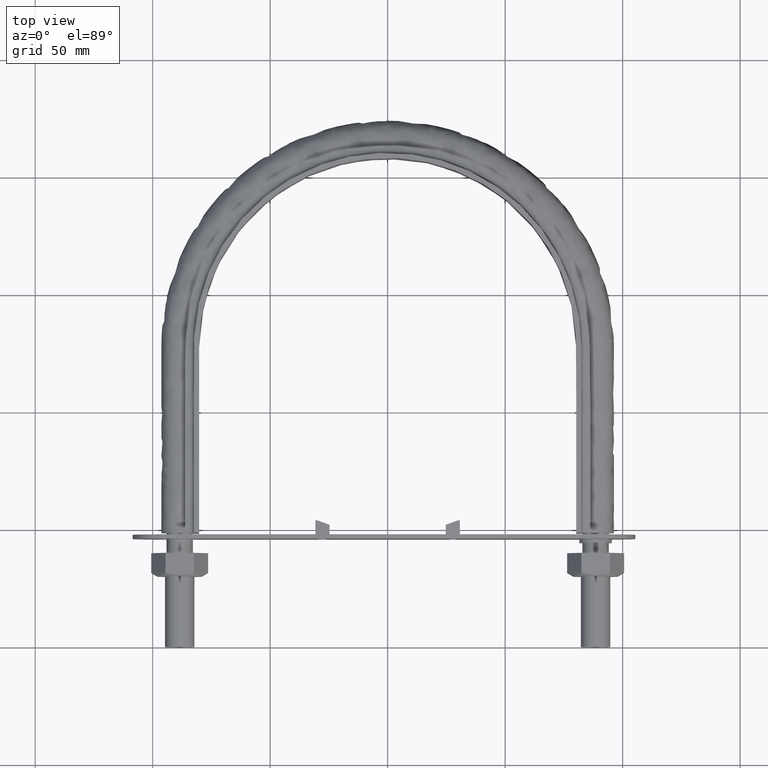
[diagram: clean part render]
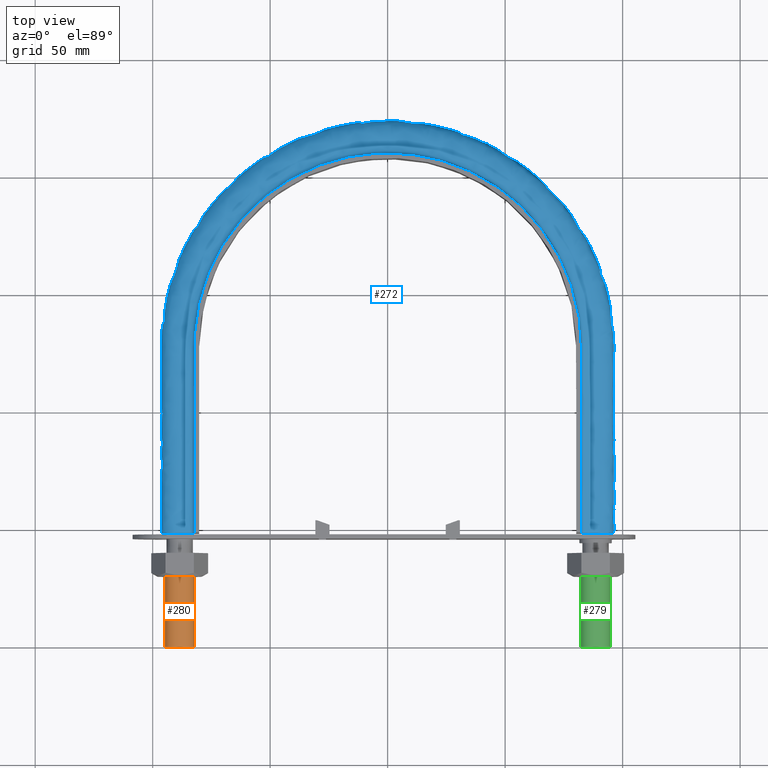
[diagram: same view with three faces highlighted in distinct colors, each labeled with its STEP entity id]
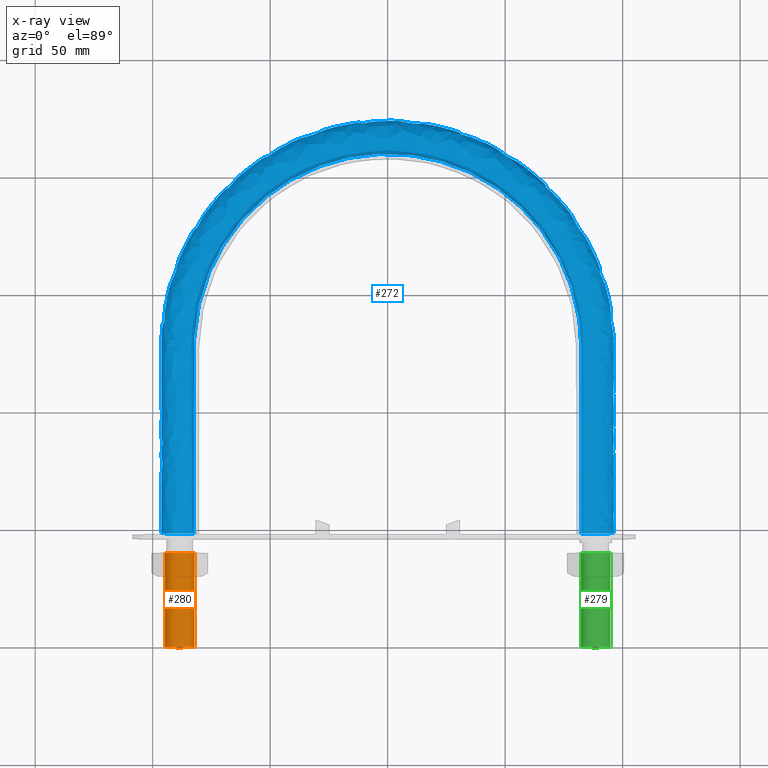
[diagram: x-ray of the same camera — body ghosted, the three highlighted faces saturated]
A machine part, top view with three faces highlighted in distinct colors.
The next image is the same camera in x-ray (body ghosted, the three faces saturated) — at least one of them is partly hidden behind the body in this view.
Their STEP definitions:

[orange] entity #280 — the highlighted cylindrical surface (bore or boss wall) has radius 6.25 mm, axis along (-0, -1, 0).
#280 = ADVANCED_FACE( '', ( #379, #380 ), #381, .T. );
#379 = FACE_OUTER_BOUND( '', #1476, .T. );
#380 = FACE_OUTER_BOUND( '', #1477, .T. );
#381 = CYLINDRICAL_SURFACE( '', #1478, 6.25000000000000 );
#1476 = EDGE_LOOP( '', ( #1732 ) );
#1477 = EDGE_LOOP( '', ( #1733 ) );
#1478 = AXIS2_PLACEMENT_3D( '', #1734, #1735, #1736 );
#1732 = ORIENTED_EDGE( '', *, *, #2216, .T. );
#1733 = ORIENTED_EDGE( '', *, *, #2215, .F. );
#1734 = CARTESIAN_POINT( '', ( -88.4999999999999, 370.000000000000, 0.000000000000000 ) );
#1735 = DIRECTION( '', ( -1.83690953073357E-016, -1.00000000000000, 0.000000000000000 ) );
#1736 = DIRECTION( '', ( -1.00000000000000, 1.83690953073357E-016, 0.000000000000000 ) );
#2215 = EDGE_CURVE( '', #2385, #2385, #2386, .T. );
#2216 = EDGE_CURVE( '', #2387, #2387, #2388, .T. );
#2385 = VERTEX_POINT( '', #2847 );
#2386 = CIRCLE( '', #2848, 6.25000000000000 );
#2387 = VERTEX_POINT( '', #2849 );
#2388 = CIRCLE( '', #2850, 6.25000000000000 );
#2847 = CARTESIAN_POINT( '', ( -94.7500000000000, 40.0000000000000, 0.000000000000000 ) );
#2848 = AXIS2_PLACEMENT_3D( '', #3317, #3318, #3319 );
#2849 = CARTESIAN_POINT( '', ( -94.7500000000000, 6.74969859192943E-014, 0.000000000000000 ) );
#2850 = AXIS2_PLACEMENT_3D( '', #3320, #3321, #3322 );
#3317 = CARTESIAN_POINT( '', ( -88.5000000000000, 40.0000000000000, 0.000000000000000 ) );
#3318 = DIRECTION( '', ( 1.83690953073357E-016, 1.00000000000000, 0.000000000000000 ) );
#3319 = DIRECTION( '', ( -1.00000000000000, 1.83690953073357E-016, 0.000000000000000 ) );
#3320 = CARTESIAN_POINT( '', ( -88.5000000000000, 6.63489174625859E-014, 0.000000000000000 ) );
#3321 = DIRECTION( '', ( 1.83690953073357E-016, 1.00000000000000, 0.000000000000000 ) );
#3322 = DIRECTION( '', ( -1.00000000000000, 1.83690953073357E-016, 0.000000000000000 ) );

[blue] entity #272 — the highlighted face is a freeform B-spline surface patch.
#272 = ADVANCED_FACE( '', ( #357 ), #358, .F. );
#357 = FACE_OUTER_BOUND( '', #545, .T. );
#358 = B_SPLINE_SURFACE_WITH_KNOTS( '', 3, 3, ( ( #546, #547, #548, #549, #550, #551, #552, #553, #554, #555, #556, #557, #558, #559, #560, #561, #562, #563 ), ( #564, #565, #566, #567, #568, #569, #570, #571, #572, #573, #574, #575, #576, #577, #578, #579, #580, #581 ), ( #582, #583, #584, #585, #586, #587, #588, #589, #590, #591, #592, #593, #594, #595, #596, #597, #598, #599 ), ( #600, #601, #602, #603, #604, #605, #606, #607, #608, #609, #610, #611, #612, #613, #614, #615, #616, #617 ), ( #618, #619, #620, #621, #622, #623, #624, #625, #626, #627, #628, #629, #630, #631, #632, #633, #634, #635 ), ( #636, #637, #638, #639, #640, #641, #642, #643, #644, #645, #646, #647, #648, #649, #650, #651, #652, #653 ), ( #654, #655, #656, #657, #658, #659, #660, #661, #662, #663, #664, #665, #666, #667, #668, #669, #670, #671 ), ( #672, #673, #674, #675, #676, #677, #678, #679, #680, #681, #682, #683, #684, #685, #686, #687, #688, #689 ), ( #690, #691, #692, #693, #694, #695, #696, #697, #698, #699, #700, #701, #702, #703, #704, #705, #706, #707 ), ( #708, #709, #710, #711, #712, #713, #714, #715, #716, #717, #718, #719, #720, #721, #722, #723, #724, #725 ), ( #726, #727, #728, #729, #730, #731, #732, #733, #734, #735, #736, #737, #738, #739, #740, #741, #742, #743 ), ( #744, #745, #746, #747, #748, #749, #750, #751, #752, #753, #754, #755, #756, #757, #758, #759, #760, #761 ), ( #762, #763, #764, #765, #766, #767, #768, #769, #770, #771, #772, #773, #774, #775, #776, #777, #778, #779 ), ( #780, #781, #782, #783, #784, #785, #786, #787, #788, #789, #790, #791, #792, #793, #794, #795, #796, #797 ), ( #798, #799, #800, #801, #802, #803, #804, #805, #806, #807, #808, #809, #810, #811, #812, #813, #814, #815 ), ( #816, #817, #818, #819, #820, #821, #822, #823, #824, #825, #826, #827, #828, #829, #830, #831, #832, #833 ), ( #834, #835, #836, #837, #838, #839, #840, #841, #842, #843, #844, #845, #846, #847, #848, #849, #850, #851 ), ( #852, #853, #854, #855, #856, #857, #858, #859, #860, #861, #862, #863, #864, #865, #866, #867, #868, #869 ), ( #870, #871, #872, #873, #874, #875, #876, #877, #878, #879, #880, #881, #882, #883, #884, #885, #886, #887 ), ( #888, #889, #890, #891, #892, #893, #894, #895, #896, #897, #898, #899, #900, #901, #902, #903, #904, #905 ), ( #906, #907, #908, #909, #910, #911, #912, #913, #914, #915, #916, #917, #918, #919, #920, #921, #922, #923 ), ( #924, #925, #926, #927, #928, #929, #930, #931, #932, #933, #934, #935, #936, #937, #938, #939, #940, #941 ), ( #942, #943, #944, #945, #946, #947, #948, #949, #950, #951, #952, #953, #954, #955, #956, #957, #958, #959 ), ( #960, #961, #962, #963, #964, #965, #966, #967, #968, #969, #970, #971, #972, #973, #974, #975, #976, #977 ), ( #978, #979, #980, #981, #982, #983, #984, #985, #986, #987, #988, #989, #990, #991, #992, #993, #994, #995 ), ( #996, #997, #998, #999, #1000, #1001, #1002, #1003, #1004, #1005, #1006, #1007, #1008, #1009, #1010, #1011, #1012, #1013 ), ( #1014, #1015, #1016, #1017, #1018, #1019, #1020, #1021, #1022, #1023, #1024, #1025, #1026, #1027, #1028, #1029, #1030, #1031 ), ( #1032, #1033, #1034, #1035, #1036, #1037, #1038, #1039, #1040, #1041, #1042, #1043, #1044, #1045, #1046, #1047, #1048, #1049 ), ( #1050, #1051, #1052, #1053, #1054, #1055, #1056, #1057, #1058, #1059, #1060, #1061, #1062, #1063, #1064, #1065, #1066, #1067 ), ( #1068, #1069, #1070, #1071, #1072, #1073, #1074, #1075, #1076, #1077, #1078, #1079, #1080, #1081, #1082, #1083, #1084, #1085 ), ( #1086, #1087, #1088, #1089, #1090, #1091, #1092, #1093, #1094, #1095, #1096, #1097, #1098, #1099, #1100, #1101, #1102, #1103 ) ), .UNSPECIFIED., .F., .F., .F., ( 4, 3, 1, 1, 1, 3, 3, 1, 1, 1, 3, 3, 1, 1, 1, 3, 4 ), ( 4, 3, 1, 1, 1, 1, 1, 1, 1, 1, 3, 4 ), ( 0.105263157894737, 0.157894736842105, 0.210526315789474, 0.263157894736842, 0.315789473684211, 0.368421052631579, 0.421052631578947, 0.473684210526316, 0.526315789473684, 0.578947368421053, 0.631578947368421, 0.684210526315789, 0.736842105263158, 0.789473684210526, 0.842105263157895, 0.894736842105263, 0.947368421052632 ), ( 0.000000000000000, 1.00000000000000, 1.50000000000000, 2.00000000000000, 3.00000000000000, 4.00000000000000, 5.00000000000000, 6.00000000000000, 7.00000000000000, 7.50000000000000, 8.00000000000000, 9.00000000000000 ), .UNSPECIFIED. );
#545 = EDGE_LOOP( '', ( #1682, #1683, #1684, #1685 ) );
#546 = CARTESIAN_POINT( '', ( 82.4500000000000, 48.5000000000000, -15.0000000000000 ) );
#547 = CARTESIAN_POINT( '', ( 82.4500000000000, 74.9200000000000, -15.0000000000000 ) );
#548 = CARTESIAN_POINT( '', ( 82.4500000000000, 101.340000000000, -15.0000000000000 ) );
#549 = CARTESIAN_POINT( '', ( 82.4500000000000, 127.760000000000, -15.0000000000000 ) );
#550 = CARTESIAN_POINT( '', ( 82.4500000000000, 133.917965282921, -15.0000000000000 ) );
#551 = CARTESIAN_POINT( '', ( 81.0415063471974, 146.260747551918, -15.0000000000000 ) );
#552 = CARTESIAN_POINT( '', ( 72.8782592641098, 169.697642595926, -15.0000000000000 ) );
#553 = CARTESIAN_POINT( '', ( 53.1613822653425, 194.423193230709, -15.0000000000000 ) );
#554 = CARTESIAN_POINT( '', ( 18.9732412542822, 210.886728985128, -15.0000000000000 ) );
#555 = CARTESIAN_POINT( '', ( -18.9732412542821, 210.886728985128, -15.0000000000000 ) );
#556 = CARTESIAN_POINT( '', ( -53.1613822653425, 194.423193230709, -15.0000000000000 ) );
#557 = CARTESIAN_POINT( '', ( -72.8782592641097, 169.697642595927, -15.0000000000000 ) );
#558 = CARTESIAN_POINT( '', ( -81.0415063471973, 146.260747551918, -15.0000000000000 ) );
#559 = CARTESIAN_POINT( '', ( -82.4500000000000, 133.917965282921, -15.0000000000000 ) );
#560 = CARTESIAN_POINT( '', ( -82.4500000000000, 127.760000000000, -15.0000000000000 ) );
#561 = CARTESIAN_POINT( '', ( -82.4500000000000, 101.340000000000, -15.0000000000000 ) );
#562 = CARTESIAN_POINT( '', ( -82.4500000000000, 74.9200000000000, -15.0000000000000 ) );
#563 = CARTESIAN_POINT( '', ( -82.4500000000000, 48.5000000000001, -15.0000000000000 ) );
#564 = CARTESIAN_POINT( '', ( 82.4500000000000, 48.5000000000000, -13.2666666666667 ) );
#565 = CARTESIAN_POINT( '', ( 82.4500000000000, 74.9200000000000, -13.2666666666667 ) );
#566 = CARTESIAN_POINT( '', ( 82.4500000000000, 101.340000000000, -13.2666666666667 ) );
#567 = CARTESIAN_POINT( '', ( 82.4500000000000, 127.760000000000, -13.2666666666667 ) );
#568 = CARTESIAN_POINT( '', ( 82.4500000000000, 133.917965282921, -13.2666666666667 ) );
#569 = CARTESIAN_POINT( '', ( 81.0415063471974, 146.260747551918, -13.2666666666667 ) );
#570 = CARTESIAN_POINT( '', ( 72.8782592641098, 169.697642595926, -13.2666666666667 ) );
#571 = CARTESIAN_POINT( '', ( 53.1613822653425, 194.423193230709, -13.2666666666667 ) );
#572 = CARTESIAN_POINT( '', ( 18.9732412542822, 210.886728985128, -13.2666666666667 ) );
#573 = CARTESIAN_POINT( '', ( -18.9732412542821, 210.886728985128, -13.2666666666667 ) );
#574 = CARTESIAN_POINT( '', ( -53.1613822653425, 194.423193230709, -13.2666666666667 ) );
#575 = CARTESIAN_POINT( '', ( -72.8782592641097, 169.697642595927, -13.2666666666667 ) );
#576 = CARTESIAN_POINT( '', ( -81.0415063471973, 146.260747551918, -13.2666666666667 ) );
#577 = CARTESIAN_POINT( '', ( -82.4500000000000, 133.917965282921, -13.2666666666667 ) );
#578 = CARTESIAN_POINT( '', ( -82.4500000000000, 127.760000000000, -13.2666666666667 ) );
#579 = CARTESIAN_POINT( '', ( -82.4500000000000, 101.340000000000, -13.2666666666667 ) );
#580 = CARTESIAN_POINT( '', ( -82.4500000000000, 74.9200000000000, -13.2666666666667 ) );
#581 = CARTESIAN_POINT( '', ( -82.4500000000000, 48.5000000000001, -13.2666666666667 ) );
#582 = CARTESIAN_POINT( '', ( 82.4500000000000, 48.5000000000000, -11.5333333333333 ) );
#583 = CARTESIAN_POINT( '', ( 82.4500000000000, 74.9200000000000, -11.5333333333333 ) );
#584 = CARTESIAN_POINT( '', ( 82.4500000000000, 101.340000000000, -11.5333333333333 ) );
#585 = CARTESIAN_POINT( '', ( 82.4500000000000, 127.760000000000, -11.5333333333333 ) );
#586 = CARTESIAN_POINT( '', ( 82.4500000000000, 133.917965282921, -11.5333333333333 ) );
#587 = CARTESIAN_POINT( '', ( 81.0415063471974, 146.260747551918, -11.5333333333333 ) );
#588 = CARTESIAN_POINT( '', ( 72.8782592641098, 169.697642595927, -11.5333333333334 ) );
#589 = CARTESIAN_POINT( '', ( 53.1613822653425, 194.423193230709, -11.5333333333333 ) );
#590 = CARTESIAN_POINT( '', ( 18.9732412542822, 210.886728985128, -11.5333333333333 ) );
#591 = CARTESIAN_POINT( '', ( -18.9732412542821, 210.886728985128, -11.5333333333333 ) );
#592 = CARTESIAN_POINT( '', ( -53.1613822653425, 194.423193230709, -11.5333333333333 ) );
#593 = CARTESIAN_POINT( '', ( -72.8782592641097, 169.697642595927, -11.5333333333333 ) );
#594 = CARTESIAN_POINT( '', ( -81.0415063471973, 146.260747551918, -11.5333333333333 ) );
#595 = CARTESIAN_POINT( '', ( -82.4500000000000, 133.917965282921, -11.5333333333333 ) );
#596 = CARTESIAN_POINT( '', ( -82.4500000000000, 127.760000000000, -11.5333333333333 ) );
#597 = CARTESIAN_POINT( '', ( -82.4500000000000, 101.340000000000, -11.5333333333333 ) );
#598 = CARTESIAN_POINT( '', ( -82.4500000000000, 74.9200000000000, -11.5333333333333 ) );
#599 = CARTESIAN_POINT( '', ( -82.4500000000000, 48.5000000000001, -11.5333333333333 ) );
#600 = CARTESIAN_POINT( '', ( 82.4500000000000, 48.5000000000000, -9.79999999999999 ) );
#601 = CARTESIAN_POINT( '', ( 82.4500000000000, 74.9200000000000, -9.79999999999999 ) );
#602 = CARTESIAN_POINT( '', ( 82.4500000000000, 101.340000000000, -9.79999999999999 ) );
#603 = CARTESIAN_POINT( '', ( 82.4500000000000, 127.760000000000, -9.79999999999999 ) );
#604 = CARTESIAN_POINT( '', ( 82.4500000000000, 133.917965282921, -9.79999999999999 ) );
#605 = CARTESIAN_POINT( '', ( 81.0415063471974, 146.260747551918, -9.79999999999999 ) );
#606 = CARTESIAN_POINT( '', ( 72.8782592641098, 169.697642595927, -9.80000000000001 ) );
#607 = CARTESIAN_POINT( '', ( 53.1613822653425, 194.423193230709, -9.79999999999998 ) );
#608 = CARTESIAN_POINT( '', ( 18.9732412542822, 210.886728985128, -9.79999999999999 ) );
#609 = CARTESIAN_POINT( '', ( -18.9732412542821, 210.886728985128, -9.80000000000000 ) );
#610 = CARTESIAN_POINT( '', ( -53.1613822653425, 194.423193230709, -9.79999999999999 ) );
#611 = CARTESIAN_POINT( '', ( -72.8782592641097, 169.697642595927, -9.79999999999999 ) );
#612 = CARTESIAN_POINT( '', ( -81.0415063471973, 146.260747551918, -9.79999999999999 ) );
#613 = CARTESIAN_POINT( '', ( -82.4500000000000, 133.917965282921, -9.79999999999999 ) );
#614 = CARTESIAN_POINT( '', ( -82.4500000000000, 127.760000000000, -9.79999999999999 ) );
#615 = CARTESIAN_POINT( '', ( -82.4500000000000, 101.340000000000, -9.79999999999999 ) );
#616 = CARTESIAN_POINT( '', ( -82.4500000000000, 74.9200000000000, -9.79999999999999 ) );
#617 = CARTESIAN_POINT( '', ( -82.4500000000000, 48.5000000000001, -9.79999999999999 ) );
#618 = CARTESIAN_POINT( '', ( 82.4500000000000, 48.5000000000000, -9.53823584172332 ) );
#619 = CARTESIAN_POINT( '', ( 82.4500000000000, 74.9200000000000, -9.53823584172332 ) );
#620 = CARTESIAN_POINT( '', ( 82.4500000000000, 101.340000000000, -9.53823584172332 ) );
#621 = CARTESIAN_POINT( '', ( 82.4500000000000, 127.760000000000, -9.53823584172332 ) );
#622 = CARTESIAN_POINT( '', ( 82.4500000000000, 133.917965282921, -9.53823584172332 ) );
#623 = CARTESIAN_POINT( '', ( 81.0415063471974, 146.260747551918, -9.53823584172332 ) );
#624 = CARTESIAN_POINT( '', ( 72.8782592641098, 169.697642595926, -9.53823584172334 ) );
#625 = CARTESIAN_POINT( '', ( 53.1613822653425, 194.423193230709, -9.53823584172331 ) );
#626 = CARTESIAN_POINT( '', ( 18.9732412542822, 210.886728985128, -9.53823584172333 ) );
#627 = CARTESIAN_POINT( '', ( -18.9732412542821, 210.886728985128, -9.53823584172333 ) );
#628 = CARTESIAN_POINT( '', ( -53.1613822653425, 194.423193230709, -9.53823584172332 ) );
#629 = CARTESIAN_POINT( '', ( -72.8782592641097, 169.697642595927, -9.53823584172332 ) );
#630 = CARTESIAN_POINT( '', ( -81.0415063471973, 146.260747551918, -9.53823584172332 ) );
#631 = CARTESIAN_POINT( '', ( -82.4500000000000, 133.917965282921, -9.53823584172332 ) );
#632 = CARTESIAN_POINT( '', ( -82.4500000000000, 127.760000000000, -9.53823584172332 ) );
#633 = CARTESIAN_POINT( '', ( -82.4500000000000, 101.340000000000, -9.53823584172332 ) );
#634 = CARTESIAN_POINT( '', ( -82.4500000000000, 74.9200000000000, -9.53823584172332 ) );
#635 = CARTESIAN_POINT( '', ( -82.4500000000000, 48.5000000000001, -9.53823584172332 ) );
#636 = CARTESIAN_POINT( '', ( 82.5541362568359, 48.5000000000000, -9.01470752517000 ) );
#637 = CARTESIAN_POINT( '', ( 82.5541362568359, 74.9200000000000, -9.01470752517000 ) );
#638 = CARTESIAN_POINT( '', ( 82.5541362568359, 101.340000000000, -9.01470752517000 ) );
#639 = CARTESIAN_POINT( '', ( 82.5541362568359, 127.760000000000, -9.01470752517000 ) );
#640 = CARTESIAN_POINT( '', ( 82.5541362568359, 133.925888089944, -9.01470752517000 ) );
#641 = CARTESIAN_POINT( '', ( 81.1438855386676, 146.284053785244, -9.01470752516999 ) );
#642 = CARTESIAN_POINT( '', ( 72.9702935407622, 169.750645792292, -9.01470752517001 ) );
#643 = CARTESIAN_POINT( '', ( 53.2285306995549, 194.507378724202, -9.01470752516999 ) );
#644 = CARTESIAN_POINT( '', ( 18.9972034371377, 210.991722298581, -9.01470752517000 ) );
#645 = CARTESIAN_POINT( '', ( -18.9972034371376, 210.991722298581, -9.01470752517000 ) );
#646 = CARTESIAN_POINT( '', ( -53.2285306995549, 194.507378724202, -9.01470752516999 ) );
#647 = CARTESIAN_POINT( '', ( -72.9702935407621, 169.750645792292, -9.01470752516999 ) );
#648 = CARTESIAN_POINT( '', ( -81.1438855386676, 146.284053785244, -9.01470752517000 ) );
#649 = CARTESIAN_POINT( '', ( -82.5541362568359, 133.925888089945, -9.01470752517000 ) );
#650 = CARTESIAN_POINT( '', ( -82.5541362568359, 127.760000000000, -9.01470752517000 ) );
#651 = CARTESIAN_POINT( '', ( -82.5541362568359, 101.340000000000, -9.01470752517000 ) );
#652 = CARTESIAN_POINT( '', ( -82.5541362568359, 74.9200000000000, -9.01470752517000 ) );
#653 = CARTESIAN_POINT( '', ( -82.5541362568359, 48.5000000000001, -9.01470752517000 ) );
#654 = CARTESIAN_POINT( '', ( 82.9989687109389, 48.5000000000000, -8.34896871093886 ) );
#655 = CARTESIAN_POINT( '', ( 82.9989687109389, 74.9200000000000, -8.34896871093886 ) );
#656 = CARTESIAN_POINT( '', ( 82.9989687109389, 101.340000000000, -8.34896871093886 ) );
#657 = CARTESIAN_POINT( '', ( 82.9989687109389, 127.760000000000, -8.34896871093886 ) );
#658 = CARTESIAN_POINT( '', ( 82.9989687109389, 133.959731458226, -8.34896871093886 ) );
#659 = CARTESIAN_POINT( '', ( 81.5812124445365, 146.383609591080, -8.34896871093886 ) );
#660 = CARTESIAN_POINT( '', ( 73.3634307092067, 169.977056291677, -8.34896871093888 ) );
#661 = CARTESIAN_POINT( '', ( 53.5153645429006, 194.866988727559, -8.34896871093885 ) );
#662 = CARTESIAN_POINT( '', ( 19.0995612223047, 211.440215788808, -8.34896871093886 ) );
#663 = CARTESIAN_POINT( '', ( -19.0995612223046, 211.440215788808, -8.34896871093886 ) );
#664 = CARTESIAN_POINT( '', ( -53.5153645429006, 194.866988727559, -8.34896871093886 ) );
#665 = CARTESIAN_POINT( '', ( -73.3634307092067, 169.977056291677, -8.34896871093886 ) );
#666 = CARTESIAN_POINT( '', ( -81.5812124445364, 146.383609591080, -8.34896871093886 ) );
#667 = CARTESIAN_POINT( '', ( -82.9989687109388, 133.959731458227, -8.34896871093886 ) );
#668 = CARTESIAN_POINT( '', ( -82.9989687109388, 127.760000000000, -8.34896871093886 ) );
#669 = CARTESIAN_POINT( '', ( -82.9989687109388, 101.340000000000, -8.34896871093886 ) );
#670 = CARTESIAN_POINT( '', ( -82.9989687109388, 74.9200000000000, -8.34896871093886 ) );
#671 = CARTESIAN_POINT( '', ( -82.9989687109388, 48.5000000000001, -8.34896871093886 ) );
#672 = CARTESIAN_POINT( '', ( 83.6647075251700, 48.5000000000000, -7.90413625683589 ) );
#673 = CARTESIAN_POINT( '', ( 83.6647075251700, 74.9200000000000, -7.90413625683589 ) );
#674 = CARTESIAN_POINT( '', ( 83.6647075251700, 101.340000000000, -7.90413625683589 ) );
#675 = CARTESIAN_POINT( '', ( 83.6647075251700, 127.760000000000, -7.90413625683589 ) );
#676 = CARTESIAN_POINT( '', ( 83.6647075251700, 134.010381638225, -7.90413625683589 ) );
#677 = CARTESIAN_POINT( '', ( 82.2357184120284, 146.532605383800, -7.90413625683589 ) );
#678 = CARTESIAN_POINT( '', ( 73.9518020610190, 170.315903549785, -7.90413625683591 ) );
#679 = CARTESIAN_POINT( '', ( 53.9446417257792, 195.405183130896, -7.90413625683589 ) );
#680 = CARTESIAN_POINT( '', ( 19.2527504734392, 212.111433730801, -7.90413625683590 ) );
#681 = CARTESIAN_POINT( '', ( -19.2527504734391, 212.111433730801, -7.90413625683590 ) );
#682 = CARTESIAN_POINT( '', ( -53.9446417257792, 195.405183130896, -7.90413625683589 ) );
#683 = CARTESIAN_POINT( '', ( -73.9518020610189, 170.315903549785, -7.90413625683589 ) );
#684 = CARTESIAN_POINT( '', ( -82.2357184120283, 146.532605383800, -7.90413625683590 ) );
#685 = CARTESIAN_POINT( '', ( -83.6647075251700, 134.010381638225, -7.90413625683589 ) );
#686 = CARTESIAN_POINT( '', ( -83.6647075251700, 127.760000000000, -7.90413625683589 ) );
#687 = CARTESIAN_POINT( '', ( -83.6647075251700, 101.340000000000, -7.90413625683589 ) );
#688 = CARTESIAN_POINT( '', ( -83.6647075251700, 74.9200000000000, -7.90413625683589 ) );
#689 = CARTESIAN_POINT( '', ( -83.6647075251700, 48.5000000000001, -7.90413625683589 ) );
#690 = CARTESIAN_POINT( '', ( 84.1882358417233, 48.5000000000000, -7.79999999999998 ) );
#691 = CARTESIAN_POINT( '', ( 84.1882358417233, 74.9200000000000, -7.79999999999998 ) );
#692 = CARTESIAN_POINT( '', ( 84.1882358417233, 101.340000000000, -7.79999999999998 ) );
#693 = CARTESIAN_POINT( '', ( 84.1882358417233, 127.760000000000, -7.79999999999998 ) );
#694 = CARTESIAN_POINT( '', ( 84.1882358417234, 134.050212278863, -7.79999999999998 ) );
#695 = CARTESIAN_POINT( '', ( 82.7504133644789, 146.649773731010, -7.79999999999998 ) );
#696 = CARTESIAN_POINT( '', ( 74.4144896146629, 170.582368612080, -7.80000000000000 ) );
#697 = CARTESIAN_POINT( '', ( 54.2822197009296, 195.828412186997, -7.79999999999997 ) );
#698 = CARTESIAN_POINT( '', ( 19.3732165016264, 212.639270761931, -7.79999999999999 ) );
#699 = CARTESIAN_POINT( '', ( -19.3732165016263, 212.639270761931, -7.79999999999999 ) );
#700 = CARTESIAN_POINT( '', ( -54.2822197009296, 195.828412186997, -7.79999999999999 ) );
#701 = CARTESIAN_POINT( '', ( -74.4144896146628, 170.582368612080, -7.79999999999998 ) );
#702 = CARTESIAN_POINT( '', ( -82.7504133644789, 146.649773731010, -7.79999999999998 ) );
#703 = CARTESIAN_POINT( '', ( -84.1882358417233, 134.050212278863, -7.79999999999998 ) );
#704 = CARTESIAN_POINT( '', ( -84.1882358417233, 127.760000000000, -7.79999999999998 ) );
#705 = CARTESIAN_POINT( '', ( -84.1882358417233, 101.340000000000, -7.79999999999998 ) );
#706 = CARTESIAN_POINT( '', ( -84.1882358417233, 74.9200000000000, -7.79999999999998 ) );
#707 = CARTESIAN_POINT( '', ( -84.1882358417233, 48.5000000000001, -7.79999999999998 ) );
#708 = CARTESIAN_POINT( '', ( 84.4500000000000, 48.5000000000000, -7.79999999999998 ) );
#709 = CARTESIAN_POINT( '', ( 84.4500000000000, 74.9200000000000, -7.79999999999998 ) );
#710 = CARTESIAN_POINT( '', ( 84.4500000000000, 101.340000000000, -7.79999999999998 ) );
#711 = CARTESIAN_POINT( '', ( 84.4500000000000, 127.760000000000, -7.79999999999998 ) );
#712 = CARTESIAN_POINT( '', ( 84.4500000000000, 134.070127599181, -7.79999999999998 ) );
#713 = CARTESIAN_POINT( '', ( 83.0077608407042, 146.708357904614, -7.79999999999998 ) );
#714 = CARTESIAN_POINT( '', ( 74.6458333914849, 170.715601143227, -7.80000000000000 ) );
#715 = CARTESIAN_POINT( '', ( 54.4510086885048, 196.040026715048, -7.79999999999997 ) );
#716 = CARTESIAN_POINT( '', ( 19.4334495157200, 212.903189277496, -7.79999999999999 ) );
#717 = CARTESIAN_POINT( '', ( -19.4334495157199, 212.903189277496, -7.79999999999999 ) );
#718 = CARTESIAN_POINT( '', ( -54.4510086885048, 196.040026715048, -7.79999999999998 ) );
#719 = CARTESIAN_POINT( '', ( -74.6458333914848, 170.715601143227, -7.79999999999998 ) );
#720 = CARTESIAN_POINT( '', ( -83.0077608407041, 146.708357904614, -7.79999999999998 ) );
#721 = CARTESIAN_POINT( '', ( -84.4500000000000, 134.070127599181, -7.79999999999998 ) );
#722 = CARTESIAN_POINT( '', ( -84.4500000000000, 127.760000000000, -7.79999999999998 ) );
#723 = CARTESIAN_POINT( '', ( -84.4500000000000, 101.340000000000, -7.79999999999998 ) );
#724 = CARTESIAN_POINT( '', ( -84.4500000000000, 74.9200000000000, -7.79999999999998 ) );
#725 = CARTESIAN_POINT( '', ( -84.4500000000000, 48.5000000000001, -7.79999999999998 ) );
#726 = CARTESIAN_POINT( '', ( 85.8000000000000, 48.5000000000000, -7.79999999999999 ) );
#727 = CARTESIAN_POINT( '', ( 85.8000000000000, 74.9200000000000, -7.79999999999999 ) );
#728 = CARTESIAN_POINT( '', ( 85.8000000000000, 101.340000000000, -7.79999999999999 ) );
#729 = CARTESIAN_POINT( '', ( 85.8000000000000, 127.760000000000, -7.79999999999999 ) );
#730 = CARTESIAN_POINT( '', ( 85.8000000000000, 134.172837162657, -7.79999999999999 ) );
#731 = CARTESIAN_POINT( '', ( 84.3349826238212, 147.010494892684, -7.79999999999999 ) );
#732 = CARTESIAN_POINT( '', ( 75.8389459274631, 171.402723162656, -7.80000000000001 ) );
#733 = CARTESIAN_POINT( '', ( 55.3215065241394, 197.131389316976, -7.79999999999998 ) );
#734 = CARTESIAN_POINT( '', ( 19.7440900921905, 214.264299974845, -7.79999999999999 ) );
#735 = CARTESIAN_POINT( '', ( -19.7440900921904, 214.264299974845, -7.80000000000000 ) );
#736 = CARTESIAN_POINT( '', ( -55.3215065241394, 197.131389316976, -7.79999999999999 ) );
#737 = CARTESIAN_POINT( '', ( -75.8389459274630, 171.402723162656, -7.79999999999999 ) );
#738 = CARTESIAN_POINT( '', ( -84.3349826238212, 147.010494892684, -7.79999999999999 ) );
#739 = CARTESIAN_POINT( '', ( -85.8000000000000, 134.172837162657, -7.79999999999999 ) );
#740 = CARTESIAN_POINT( '', ( -85.8000000000000, 127.760000000000, -7.79999999999999 ) );
#741 = CARTESIAN_POINT( '', ( -85.8000000000000, 101.340000000000, -7.79999999999999 ) );
#742 = CARTESIAN_POINT( '', ( -85.8000000000000, 74.9200000000000, -7.79999999999999 ) );
#743 = CARTESIAN_POINT( '', ( -85.8000000000000, 48.5000000000001, -7.79999999999999 ) );
#744 = CARTESIAN_POINT( '', ( 87.1500000000000, 48.5000000000000, -7.79999999999999 ) );
#745 = CARTESIAN_POINT( '', ( 87.1500000000000, 74.9200000000000, -7.79999999999999 ) );
#746 = CARTESIAN_POINT( '', ( 87.1500000000000, 101.340000000000, -7.79999999999999 ) );
#747 = CARTESIAN_POINT( '', ( 87.1500000000000, 127.760000000000, -7.79999999999999 ) );
#748 = CARTESIAN_POINT( '', ( 87.1500000000000, 134.275546726132, -7.79999999999999 ) );
#749 = CARTESIAN_POINT( '', ( 85.6622044069384, 147.312631880754, -7.79999999999999 ) );
#750 = CARTESIAN_POINT( '', ( 77.0320584634413, 172.089845182084, -7.80000000000001 ) );
#751 = CARTESIAN_POINT( '', ( 56.1920043597740, 198.222751918905, -7.79999999999998 ) );
#752 = CARTESIAN_POINT( '', ( 20.0547306686611, 215.625410672194, -7.79999999999999 ) );
#753 = CARTESIAN_POINT( '', ( -20.0547306686610, 215.625410672194, -7.80000000000000 ) );
#754 = CARTESIAN_POINT( '', ( -56.1920043597740, 198.222751918905, -7.79999999999999 ) );
#755 = CARTESIAN_POINT( '', ( -77.0320584634412, 172.089845182084, -7.79999999999999 ) );
#756 = CARTESIAN_POINT( '', ( -85.6622044069383, 147.312631880754, -7.79999999999999 ) );
#757 = CARTESIAN_POINT( '', ( -87.1500000000000, 134.275546726132, -7.79999999999999 ) );
#758 = CARTESIAN_POINT( '', ( -87.1500000000000, 127.760000000000, -7.79999999999999 ) );
#759 = CARTESIAN_POINT( '', ( -87.1499999999999, 101.340000000000, -7.79999999999999 ) );
#760 = CARTESIAN_POINT( '', ( -87.1499999999999, 74.9200000000000, -7.79999999999999 ) );
#761 = CARTESIAN_POINT( '', ( -87.1500000000000, 48.5000000000001, -7.79999999999999 ) );
#762 = CARTESIAN_POINT( '', ( 88.5000000000000, 48.5000000000000, -7.79999999999999 ) );
#763 = CARTESIAN_POINT( '', ( 88.5000000000000, 74.9200000000000, -7.79999999999999 ) );
#764 = CARTESIAN_POINT( '', ( 88.5000000000000, 101.340000000000, -7.79999999999999 ) );
#765 = CARTESIAN_POINT( '', ( 88.5000000000000, 127.760000000000, -7.79999999999999 ) );
#766 = CARTESIAN_POINT( '', ( 88.5000000000000, 134.378256289608, -7.79999999999999 ) );
#767 = CARTESIAN_POINT( '', ( 86.9894261900554, 147.614768868824, -7.79999999999999 ) );
#768 = CARTESIAN_POINT( '', ( 78.2251709994195, 172.776967201512, -7.80000000000001 ) );
#769 = CARTESIAN_POINT( '', ( 57.0625021954086, 199.314114520833, -7.79999999999998 ) );
#770 = CARTESIAN_POINT( '', ( 20.3653712451316, 216.986521369543, -7.79999999999999 ) );
#771 = CARTESIAN_POINT( '', ( -20.3653712451315, 216.986521369543, -7.80000000000000 ) );
#772 = CARTESIAN_POINT( '', ( -57.0625021954085, 199.314114520833, -7.79999999999999 ) );
#773 = CARTESIAN_POINT( '', ( -78.2251709994195, 172.776967201512, -7.79999999999999 ) );
#774 = CARTESIAN_POINT( '', ( -86.9894261900554, 147.614768868824, -7.79999999999999 ) );
#775 = CARTESIAN_POINT( '', ( -88.5000000000000, 134.378256289608, -7.79999999999999 ) );
#776 = CARTESIAN_POINT( '', ( -88.5000000000000, 127.760000000000, -7.79999999999999 ) );
#777 = CARTESIAN_POINT( '', ( -88.5000000000000, 101.340000000000, -7.79999999999999 ) );
#778 = CARTESIAN_POINT( '', ( -88.5000000000000, 74.9200000000000, -7.79999999999999 ) );
#779 = CARTESIAN_POINT( '', ( -88.5000000000000, 48.5000000000001, -7.79999999999999 ) );
#780 = CARTESIAN_POINT( '', ( 90.5373902247172, 48.5000000000000, -7.79999999999998 ) );
#781 = CARTESIAN_POINT( '', ( 90.5373902247172, 74.9200000000000, -7.79999999999998 ) );
#782 = CARTESIAN_POINT( '', ( 90.5373902247172, 101.340000000000, -7.79999999999998 ) );
#783 = CARTESIAN_POINT( '', ( 90.5373902247172, 127.760000000000, -7.79999999999998 ) );
#784 = CARTESIAN_POINT( '', ( 90.5373902247172, 134.533263297467, -7.79999999999998 ) );
#785 = CARTESIAN_POINT( '', ( 88.9924400322439, 148.070747347356, -7.79999999999998 ) );
#786 = CARTESIAN_POINT( '', ( 80.0257901237081, 173.813956598231, -7.80000000000000 ) );
#787 = CARTESIAN_POINT( '', ( 58.3762383294525, 200.961174888827, -7.79999999999997 ) );
#788 = CARTESIAN_POINT( '', ( 20.8341831517253, 219.040679613644, -7.79999999999999 ) );
#789 = CARTESIAN_POINT( '', ( -20.8341831517252, 219.040679613644, -7.79999999999999 ) );
#790 = CARTESIAN_POINT( '', ( -58.3762383294525, 200.961174888827, -7.79999999999999 ) );
#791 = CARTESIAN_POINT( '', ( -80.0257901237080, 173.813956598231, -7.79999999999998 ) );
#792 = CARTESIAN_POINT( '', ( -88.9924400322439, 148.070747347356, -7.79999999999998 ) );
#793 = CARTESIAN_POINT( '', ( -90.5373902247171, 134.533263297467, -7.79999999999998 ) );
#794 = CARTESIAN_POINT( '', ( -90.5373902247171, 127.760000000000, -7.79999999999998 ) );
#795 = CARTESIAN_POINT( '', ( -90.5373902247171, 101.340000000000, -7.79999999999998 ) );
#796 = CARTESIAN_POINT( '', ( -90.5373902247171, 74.9200000000000, -7.79999999999998 ) );
#797 = CARTESIAN_POINT( '', ( -90.5373902247171, 48.5000000000001, -7.79999999999998 ) );
#798 = CARTESIAN_POINT( '', ( 94.6121706741515, 48.5000000000000, -6.11217067415154 ) );
#799 = CARTESIAN_POINT( '', ( 94.6121706741515, 74.9200000000000, -6.11217067415154 ) );
#800 = CARTESIAN_POINT( '', ( 94.6121706741515, 101.340000000000, -6.11217067415154 ) );
#801 = CARTESIAN_POINT( '', ( 94.6121706741515, 127.760000000000, -6.11217067415154 ) );
#802 = CARTESIAN_POINT( '', ( 94.6121706741516, 134.843277313186, -6.11217067415154 ) );
#803 = CARTESIAN_POINT( '', ( 92.9984677166210, 148.982704304421, -6.11217067415154 ) );
#804 = CARTESIAN_POINT( '', ( 83.6270283722852, 175.887935391669, -6.11217067415155 ) );
#805 = CARTESIAN_POINT( '', ( 61.0037105975404, 204.255295624814, -6.11217067415153 ) );
#806 = CARTESIAN_POINT( '', ( 21.7718069649128, 223.148996101846, -6.11217067415154 ) );
#807 = CARTESIAN_POINT( '', ( -21.7718069649127, 223.148996101846, -6.11217067415154 ) );
#808 = CARTESIAN_POINT( '', ( -61.0037105975404, 204.255295624814, -6.11217067415154 ) );
#809 = CARTESIAN_POINT( '', ( -83.6270283722852, 175.887935391669, -6.11217067415154 ) );
#810 = CARTESIAN_POINT( '', ( -92.9984677166209, 148.982704304421, -6.11217067415154 ) );
#811 = CARTESIAN_POINT( '', ( -94.6121706741515, 134.843277313186, -6.11217067415154 ) );
#812 = CARTESIAN_POINT( '', ( -94.6121706741515, 127.760000000000, -6.11217067415154 ) );
#813 = CARTESIAN_POINT( '', ( -94.6121706741515, 101.340000000000, -6.11217067415154 ) );
#814 = CARTESIAN_POINT( '', ( -94.6121706741515, 74.9200000000000, -6.11217067415154 ) );
#815 = CARTESIAN_POINT( '', ( -94.6121706741515, 48.5000000000001, -6.11217067415154 ) );
#816 = CARTESIAN_POINT( '', ( 97.1439146629242, 48.5000000000000, -1.05853928181154E-015 ) );
#817 = CARTESIAN_POINT( '', ( 97.1439146629242, 74.9200000000000, -1.05853928181154E-015 ) );
#818 = CARTESIAN_POINT( '', ( 97.1439146629242, 101.340000000000, -1.05853928181154E-015 ) );
#819 = CARTESIAN_POINT( '', ( 97.1439146629242, 127.760000000000, -1.05853928181154E-015 ) );
#820 = CARTESIAN_POINT( '', ( 97.1439146629242, 135.035895327940, -1.05853928181154E-015 ) );
#821 = CARTESIAN_POINT( '', ( 95.4874942137875, 149.549321714297, -1.05853928181154E-015 ) );
#822 = CARTESIAN_POINT( '', ( 85.8645509581312, 177.176540608143, -1.05853928181154E-015 ) );
#823 = CARTESIAN_POINT( '', ( 62.6362125698422, 206.301999852224, -1.05853928181154E-015 ) );
#824 = CARTESIAN_POINT( '', ( 22.3543717146522, 225.701576713748, -1.05853928181154E-015 ) );
#825 = CARTESIAN_POINT( '', ( -22.3543717146521, 225.701576713748, -1.05853928181154E-015 ) );
#826 = CARTESIAN_POINT( '', ( -62.6362125698422, 206.301999852224, -1.05853928181154E-015 ) );
#827 = CARTESIAN_POINT( '', ( -85.8645509581311, 177.176540608143, -1.05853928181154E-015 ) );
#828 = CARTESIAN_POINT( '', ( -95.4874942137875, 149.549321714297, -1.05853928181154E-015 ) );
#829 = CARTESIAN_POINT( '', ( -97.1439146629242, 135.035895327940, -1.05853928181154E-015 ) );
#830 = CARTESIAN_POINT( '', ( -97.1439146629242, 127.760000000000, -1.05853928181154E-015 ) );
#831 = CARTESIAN_POINT( '', ( -97.1439146629242, 101.340000000000, -1.05853928181154E-015 ) );
#832 = CARTESIAN_POINT( '', ( -97.1439146629242, 74.9200000000000, -1.05853928181154E-015 ) );
#833 = CARTESIAN_POINT( '', ( -97.1439146629242, 48.5000000000001, -1.05853928181154E-015 ) );
#834 = CARTESIAN_POINT( '', ( 94.6121706741515, 48.5000000000000, 6.11217067415154 ) );
#835 = CARTESIAN_POINT( '', ( 94.6121706741515, 74.9200000000000, 6.11217067415154 ) );
#836 = CARTESIAN_POINT( '', ( 94.6121706741515, 101.340000000000, 6.11217067415154 ) );
#837 = CARTESIAN_POINT( '', ( 94.6121706741515, 127.760000000000, 6.11217067415154 ) );
#838 = CARTESIAN_POINT( '', ( 94.6121706741516, 134.843277313186, 6.11217067415154 ) );
#839 = CARTESIAN_POINT( '', ( 92.9984677166210, 148.982704304421, 6.11217067415154 ) );
#840 = CARTESIAN_POINT( '', ( 83.6270283722852, 175.887935391669, 6.11217067415155 ) );
#841 = CARTESIAN_POINT( '', ( 61.0037105975404, 204.255295624814, 6.11217067415153 ) );
#842 = CARTESIAN_POINT( '', ( 21.7718069649128, 223.148996101846, 6.11217067415154 ) );
#843 = CARTESIAN_POINT( '', ( -21.7718069649127, 223.148996101846, 6.11217067415154 ) );
#844 = CARTESIAN_POINT( '', ( -61.0037105975404, 204.255295624814, 6.11217067415154 ) );
#845 = CARTESIAN_POINT( '', ( -83.6270283722852, 175.887935391669, 6.11217067415154 ) );
#846 = CARTESIAN_POINT( '', ( -92.9984677166209, 148.982704304421, 6.11217067415154 ) );
#847 = CARTESIAN_POINT( '', ( -94.6121706741515, 134.843277313186, 6.11217067415154 ) );
#848 = CARTESIAN_POINT( '', ( -94.6121706741515, 127.760000000000, 6.11217067415154 ) );
#849 = CARTESIAN_POINT( '', ( -94.6121706741515, 101.340000000000, 6.11217067415154 ) );
#850 = CARTESIAN_POINT( '', ( -94.6121706741515, 74.9200000000000, 6.11217067415154 ) );
#851 = CARTESIAN_POINT( '', ( -94.6121706741515, 48.5000000000001, 6.11217067415154 ) );
#852 = CARTESIAN_POINT( '', ( 90.5373902247172, 48.5000000000000, 7.79999999999998 ) );
#853 = CARTESIAN_POINT( '', ( 90.5373902247172, 74.9200000000000, 7.79999999999998 ) );
#854 = CARTESIAN_POINT( '', ( 90.5373902247172, 101.340000000000, 7.79999999999998 ) );
#855 = CARTESIAN_POINT( '', ( 90.5373902247172, 127.760000000000, 7.79999999999998 ) );
#856 = CARTESIAN_POINT( '', ( 90.5373902247172, 134.533263297467, 7.79999999999998 ) );
#857 = CARTESIAN_POINT( '', ( 88.9924400322439, 148.070747347356, 7.79999999999998 ) );
#858 = CARTESIAN_POINT( '', ( 80.0257901237081, 173.813956598231, 7.80000000000000 ) );
#859 = CARTESIAN_POINT( '', ( 58.3762383294525, 200.961174888827, 7.79999999999997 ) );
#860 = CARTESIAN_POINT( '', ( 20.8341831517253, 219.040679613644, 7.79999999999999 ) );
#861 = CARTESIAN_POINT( '', ( -20.8341831517252, 219.040679613644, 7.79999999999999 ) );
#862 = CARTESIAN_POINT( '', ( -58.3762383294525, 200.961174888827, 7.79999999999998 ) );
#863 = CARTESIAN_POINT( '', ( -80.0257901237080, 173.813956598231, 7.79999999999998 ) );
#864 = CARTESIAN_POINT( '', ( -88.9924400322439, 148.070747347356, 7.79999999999998 ) );
#865 = CARTESIAN_POINT( '', ( -90.5373902247171, 134.533263297467, 7.79999999999998 ) );
#866 = CARTESIAN_POINT( '', ( -90.5373902247171, 127.760000000000, 7.79999999999998 ) );
#867 = CARTESIAN_POINT( '', ( -90.5373902247171, 101.340000000000, 7.79999999999998 ) );
#868 = CARTESIAN_POINT( '', ( -90.5373902247171, 74.9200000000000, 7.79999999999998 ) );
#869 = CARTESIAN_POINT( '', ( -90.5373902247171, 48.5000000000001, 7.79999999999998 ) );
#870 = CARTESIAN_POINT( '', ( 88.5000000000000, 48.5000000000000, 7.79999999999998 ) );
#871 = CARTESIAN_POINT( '', ( 88.5000000000000, 74.9200000000000, 7.79999999999998 ) );
#872 = CARTESIAN_POINT( '', ( 88.5000000000000, 101.340000000000, 7.79999999999998 ) );
#873 = CARTESIAN_POINT( '', ( 88.5000000000000, 127.760000000000, 7.79999999999998 ) );
#874 = CARTESIAN_POINT( '', ( 88.5000000000000, 134.378256289608, 7.79999999999998 ) );
#875 = CARTESIAN_POINT( '', ( 86.9894261900554, 147.614768868824, 7.79999999999998 ) );
#876 = CARTESIAN_POINT( '', ( 78.2251709994195, 172.776967201512, 7.80000000000000 ) );
#877 = CARTESIAN_POINT( '', ( 57.0625021954086, 199.314114520833, 7.79999999999997 ) );
#878 = CARTESIAN_POINT( '', ( 20.3653712451316, 216.986521369543, 7.79999999999999 ) );
#879 = CARTESIAN_POINT( '', ( -20.3653712451315, 216.986521369543, 7.79999999999999 ) );
#880 = CARTESIAN_POINT( '', ( -57.0625021954085, 199.314114520833, 7.79999999999998 ) );
#881 = CARTESIAN_POINT( '', ( -78.2251709994195, 172.776967201512, 7.79999999999998 ) );
#882 = CARTESIAN_POINT( '', ( -86.9894261900554, 147.614768868824, 7.79999999999998 ) );
#883 = CARTESIAN_POINT( '', ( -88.5000000000000, 134.378256289608, 7.79999999999998 ) );
#884 = CARTESIAN_POINT( '', ( -88.5000000000000, 127.760000000000, 7.79999999999998 ) );
#885 = CARTESIAN_POINT( '', ( -88.5000000000000, 101.340000000000, 7.79999999999998 ) );
#886 = CARTESIAN_POINT( '', ( -88.5000000000000, 74.9200000000000, 7.79999999999998 ) );
#887 = CARTESIAN_POINT( '', ( -88.5000000000000, 48.5000000000001, 7.79999999999998 ) );
#888 = CARTESIAN_POINT( '', ( 87.1500000000000, 48.5000000000000, 7.79999999999999 ) );
#889 = CARTESIAN_POINT( '', ( 87.1500000000000, 74.9200000000000, 7.79999999999999 ) );
#890 = CARTESIAN_POINT( '', ( 87.1500000000000, 101.340000000000, 7.79999999999999 ) );
#891 = CARTESIAN_POINT( '', ( 87.1500000000000, 127.760000000000, 7.79999999999999 ) );
#892 = CARTESIAN_POINT( '', ( 87.1500000000000, 134.275546726132, 7.79999999999999 ) );
#893 = CARTESIAN_POINT( '', ( 85.6622044069384, 147.312631880754, 7.79999999999999 ) );
#894 = CARTESIAN_POINT( '', ( 77.0320584634413, 172.089845182084, 7.80000000000001 ) );
#895 = CARTESIAN_POINT( '', ( 56.1920043597740, 198.222751918905, 7.79999999999998 ) );
#896 = CARTESIAN_POINT( '', ( 20.0547306686611, 215.625410672194, 7.79999999999999 ) );
#897 = CARTESIAN_POINT( '', ( -20.0547306686610, 215.625410672194, 7.80000000000000 ) );
#898 = CARTESIAN_POINT( '', ( -56.1920043597740, 198.222751918905, 7.79999999999999 ) );
#899 = CARTESIAN_POINT( '', ( -77.0320584634412, 172.089845182084, 7.79999999999999 ) );
#900 = CARTESIAN_POINT( '', ( -85.6622044069383, 147.312631880754, 7.79999999999999 ) );
#901 = CARTESIAN_POINT( '', ( -87.1500000000000, 134.275546726132, 7.79999999999999 ) );
#902 = CARTESIAN_POINT( '', ( -87.1500000000000, 127.760000000000, 7.79999999999999 ) );
#903 = CARTESIAN_POINT( '', ( -87.1499999999999, 101.340000000000, 7.79999999999999 ) );
#904 = CARTESIAN_POINT( '', ( -87.1499999999999, 74.9200000000000, 7.79999999999999 ) );
#905 = CARTESIAN_POINT( '', ( -87.1500000000000, 48.5000000000001, 7.79999999999999 ) );
#906 = CARTESIAN_POINT( '', ( 85.8000000000000, 48.5000000000000, 7.79999999999999 ) );
#907 = CARTESIAN_POINT( '', ( 85.8000000000000, 74.9200000000000, 7.79999999999999 ) );
#908 = CARTESIAN_POINT( '', ( 85.8000000000000, 101.340000000000, 7.79999999999999 ) );
#909 = CARTESIAN_POINT( '', ( 85.8000000000000, 127.760000000000, 7.79999999999999 ) );
#910 = CARTESIAN_POINT( '', ( 85.8000000000000, 134.172837162657, 7.79999999999999 ) );
#911 = CARTESIAN_POINT( '', ( 84.3349826238212, 147.010494892684, 7.79999999999999 ) );
#912 = CARTESIAN_POINT( '', ( 75.8389459274631, 171.402723162656, 7.80000000000001 ) );
#913 = CARTESIAN_POINT( '', ( 55.3215065241394, 197.131389316976, 7.79999999999998 ) );
#914 = CARTESIAN_POINT( '', ( 19.7440900921905, 214.264299974845, 7.79999999999999 ) );
#915 = CARTESIAN_POINT( '', ( -19.7440900921904, 214.264299974845, 7.80000000000000 ) );
#916 = CARTESIAN_POINT( '', ( -55.3215065241394, 197.131389316976, 7.79999999999999 ) );
#917 = CARTESIAN_POINT( '', ( -75.8389459274630, 171.402723162656, 7.79999999999999 ) );
#918 = CARTESIAN_POINT( '', ( -84.3349826238212, 147.010494892684, 7.79999999999999 ) );
#919 = CARTESIAN_POINT( '', ( -85.8000000000000, 134.172837162657, 7.79999999999999 ) );
#920 = CARTESIAN_POINT( '', ( -85.8000000000000, 127.760000000000, 7.79999999999999 ) );
#921 = CARTESIAN_POINT( '', ( -85.8000000000000, 101.340000000000, 7.79999999999999 ) );
#922 = CARTESIAN_POINT( '', ( -85.8000000000000, 74.9200000000000, 7.79999999999999 ) );
#923 = CARTESIAN_POINT( '', ( -85.8000000000000, 48.5000000000001, 7.79999999999999 ) );
#924 = CARTESIAN_POINT( '', ( 84.4500000000000, 48.5000000000000, 7.79999999999999 ) );
#925 = CARTESIAN_POINT( '', ( 84.4500000000000, 74.9200000000000, 7.79999999999999 ) );
#926 = CARTESIAN_POINT( '', ( 84.4500000000000, 101.340000000000, 7.79999999999999 ) );
#927 = CARTESIAN_POINT( '', ( 84.4500000000000, 127.760000000000, 7.79999999999999 ) );
#928 = CARTESIAN_POINT( '', ( 84.4500000000000, 134.070127599181, 7.79999999999999 ) );
#929 = CARTESIAN_POINT( '', ( 83.0077608407042, 146.708357904614, 7.79999999999999 ) );
#930 = CARTESIAN_POINT( '', ( 74.6458333914849, 170.715601143227, 7.80000000000001 ) );
#931 = CARTESIAN_POINT( '', ( 54.4510086885048, 196.040026715048, 7.79999999999998 ) );
#932 = CARTESIAN_POINT( '', ( 19.4334495157200, 212.903189277496, 7.79999999999999 ) );
#933 = CARTESIAN_POINT( '', ( -19.4334495157199, 212.903189277496, 7.80000000000000 ) );
#934 = CARTESIAN_POINT( '', ( -54.4510086885048, 196.040026715048, 7.79999999999999 ) );
#935 = CARTESIAN_POINT( '', ( -74.6458333914848, 170.715601143228, 7.79999999999999 ) );
#936 = CARTESIAN_POINT( '', ( -83.0077608407041, 146.708357904614, 7.79999999999999 ) );
#937 = CARTESIAN_POINT( '', ( -84.4500000000000, 134.070127599181, 7.79999999999999 ) );
#938 = CARTESIAN_POINT( '', ( -84.4500000000000, 127.760000000000, 7.79999999999999 ) );
#939 = CARTESIAN_POINT( '', ( -84.4500000000000, 101.340000000000, 7.79999999999999 ) );
#940 = CARTESIAN_POINT( '', ( -84.4500000000000, 74.9200000000000, 7.79999999999999 ) );
#941 = CARTESIAN_POINT( '', ( -84.4500000000000, 48.5000000000001, 7.79999999999999 ) );
#942 = CARTESIAN_POINT( '', ( 84.1882358417233, 48.5000000000000, 7.79999999999999 ) );
#943 = CARTESIAN_POINT( '', ( 84.1882358417233, 74.9200000000000, 7.79999999999999 ) );
#944 = CARTESIAN_POINT( '', ( 84.1882358417233, 101.340000000000, 7.79999999999999 ) );
#945 = CARTESIAN_POINT( '', ( 84.1882358417233, 127.760000000000, 7.79999999999999 ) );
#946 = CARTESIAN_POINT( '', ( 84.1882358417234, 134.050212278863, 7.79999999999999 ) );
#947 = CARTESIAN_POINT( '', ( 82.7504133644789, 146.649773731010, 7.79999999999999 ) );
#948 = CARTESIAN_POINT( '', ( 74.4144896146629, 170.582368612080, 7.80000000000001 ) );
#949 = CARTESIAN_POINT( '', ( 54.2822197009296, 195.828412186997, 7.79999999999998 ) );
#950 = CARTESIAN_POINT( '', ( 19.3732165016264, 212.639270761931, 7.80000000000000 ) );
#951 = CARTESIAN_POINT( '', ( -19.3732165016263, 212.639270761931, 7.80000000000000 ) );
#952 = CARTESIAN_POINT( '', ( -54.2822197009296, 195.828412186997, 7.79999999999999 ) );
#953 = CARTESIAN_POINT( '', ( -74.4144896146629, 170.582368612080, 7.79999999999999 ) );
#954 = CARTESIAN_POINT( '', ( -82.7504133644789, 146.649773731010, 7.79999999999999 ) );
#955 = CARTESIAN_POINT( '', ( -84.1882358417233, 134.050212278863, 7.79999999999999 ) );
#956 = CARTESIAN_POINT( '', ( -84.1882358417233, 127.760000000000, 7.79999999999999 ) );
#957 = CARTESIAN_POINT( '', ( -84.1882358417233, 101.340000000000, 7.79999999999999 ) );
#958 = CARTESIAN_POINT( '', ( -84.1882358417233, 74.9200000000000, 7.79999999999999 ) );
#959 = CARTESIAN_POINT( '', ( -84.1882358417233, 48.5000000000001, 7.79999999999999 ) );
#960 = CARTESIAN_POINT( '', ( 83.6647075251700, 48.5000000000000, 7.90413625683590 ) );
#961 = CARTESIAN_POINT( '', ( 83.6647075251700, 74.9200000000000, 7.90413625683590 ) );
#962 = CARTESIAN_POINT( '', ( 83.6647075251700, 101.340000000000, 7.90413625683590 ) );
#963 = CARTESIAN_POINT( '', ( 83.6647075251700, 127.760000000000, 7.90413625683590 ) );
#964 = CARTESIAN_POINT( '', ( 83.6647075251700, 134.010381638225, 7.90413625683590 ) );
#965 = CARTESIAN_POINT( '', ( 82.2357184120284, 146.532605383800, 7.90413625683590 ) );
#966 = CARTESIAN_POINT( '', ( 73.9518020610190, 170.315903549785, 7.90413625683592 ) );
#967 = CARTESIAN_POINT( '', ( 53.9446417257792, 195.405183130896, 7.90413625683589 ) );
#968 = CARTESIAN_POINT( '', ( 19.2527504734392, 212.111433730801, 7.90413625683590 ) );
#969 = CARTESIAN_POINT( '', ( -19.2527504734391, 212.111433730801, 7.90413625683591 ) );
#970 = CARTESIAN_POINT( '', ( -53.9446417257792, 195.405183130896, 7.90413625683590 ) );
#971 = CARTESIAN_POINT( '', ( -73.9518020610189, 170.315903549785, 7.90413625683590 ) );
#972 = CARTESIAN_POINT( '', ( -82.2357184120283, 146.532605383800, 7.90413625683590 ) );
#973 = CARTESIAN_POINT( '', ( -83.6647075251700, 134.010381638225, 7.90413625683590 ) );
#974 = CARTESIAN_POINT( '', ( -83.6647075251700, 127.760000000000, 7.90413625683590 ) );
#975 = CARTESIAN_POINT( '', ( -83.6647075251700, 101.340000000000, 7.90413625683590 ) );
#976 = CARTESIAN_POINT( '', ( -83.6647075251700, 74.9200000000000, 7.90413625683590 ) );
#977 = CARTESIAN_POINT( '', ( -83.6647075251700, 48.5000000000001, 7.90413625683590 ) );
#978 = CARTESIAN_POINT( '', ( 82.9989687109389, 48.5000000000000, 8.34896871093887 ) );
#979 = CARTESIAN_POINT( '', ( 82.9989687109389, 74.9200000000000, 8.34896871093887 ) );
#980 = CARTESIAN_POINT( '', ( 82.9989687109389, 101.340000000000, 8.34896871093887 ) );
#981 = CARTESIAN_POINT( '', ( 82.9989687109389, 127.760000000000, 8.34896871093887 ) );
#982 = CARTESIAN_POINT( '', ( 82.9989687109389, 133.959731458227, 8.34896871093887 ) );
#983 = CARTESIAN_POINT( '', ( 81.5812124445365, 146.383609591080, 8.34896871093887 ) );
#984 = CARTESIAN_POINT( '', ( 73.3634307092068, 169.977056291677, 8.34896871093888 ) );
#985 = CARTESIAN_POINT( '', ( 53.5153645429006, 194.866988727559, 8.34896871093886 ) );
#986 = CARTESIAN_POINT( '', ( 19.0995612223047, 211.440215788808, 8.34896871093887 ) );
#987 = CARTESIAN_POINT( '', ( -19.0995612223046, 211.440215788808, 8.34896871093888 ) );
#988 = CARTESIAN_POINT( '', ( -53.5153645429006, 194.866988727559, 8.34896871093887 ) );
#989 = CARTESIAN_POINT( '', ( -73.3634307092067, 169.977056291677, 8.34896871093887 ) );
#990 = CARTESIAN_POINT( '', ( -81.5812124445364, 146.383609591080, 8.34896871093887 ) );
#991 = CARTESIAN_POINT( '', ( -82.9989687109388, 133.959731458227, 8.34896871093887 ) );
#992 = CARTESIAN_POINT( '', ( -82.9989687109388, 127.760000000000, 8.34896871093887 ) );
#993 = CARTESIAN_POINT( '', ( -82.9989687109388, 101.340000000000, 8.34896871093887 ) );
#994 = CARTESIAN_POINT( '', ( -82.9989687109388, 74.9200000000000, 8.34896871093887 ) );
#995 = CARTESIAN_POINT( '', ( -82.9989687109388, 48.5000000000001, 8.34896871093887 ) );
#996 = CARTESIAN_POINT( '', ( 82.5541362568359, 48.5000000000000, 9.01470752517000 ) );
#997 = CARTESIAN_POINT( '', ( 82.5541362568359, 74.9200000000000, 9.01470752517000 ) );
#998 = CARTESIAN_POINT( '', ( 82.5541362568359, 101.340000000000, 9.01470752517000 ) );
#999 = CARTESIAN_POINT( '', ( 82.5541362568359, 127.760000000000, 9.01470752517000 ) );
#1000 = CARTESIAN_POINT( '', ( 82.5541362568359, 133.925888089945, 9.01470752517000 ) );
#1001 = CARTESIAN_POINT( '', ( 81.1438855386676, 146.284053785244, 9.01470752517000 ) );
#1002 = CARTESIAN_POINT( '', ( 72.9702935407622, 169.750645792292, 9.01470752517002 ) );
#1003 = CARTESIAN_POINT( '', ( 53.2285306995549, 194.507378724202, 9.01470752516999 ) );
#1004 = CARTESIAN_POINT( '', ( 18.9972034371377, 210.991722298581, 9.01470752517000 ) );
#1005 = CARTESIAN_POINT( '', ( -18.9972034371376, 210.991722298581, 9.01470752517001 ) );
#1006 = CARTESIAN_POINT( '', ( -53.2285306995549, 194.507378724202, 9.01470752517000 ) );
#1007 = CARTESIAN_POINT( '', ( -72.9702935407621, 169.750645792292, 9.01470752517000 ) );
#1008 = CARTESIAN_POINT( '', ( -81.1438855386676, 146.284053785244, 9.01470752517000 ) );
#1009 = CARTESIAN_POINT( '', ( -82.5541362568359, 133.925888089945, 9.01470752517000 ) );
#1010 = CARTESIAN_POINT( '', ( -82.5541362568359, 127.760000000000, 9.01470752517000 ) );
#1011 = CARTESIAN_POINT( '', ( -82.5541362568359, 101.340000000000, 9.01470752517000 ) );
#1012 = CARTESIAN_POINT( '', ( -82.5541362568359, 74.9200000000000, 9.01470752517000 ) );
#1013 = CARTESIAN_POINT( '', ( -82.5541362568359, 48.5000000000001, 9.01470752517000 ) );
#1014 = CARTESIAN_POINT( '', ( 82.4500000000000, 48.5000000000000, 9.53823584172333 ) );
#1015 = CARTESIAN_POINT( '', ( 82.4500000000000, 74.9200000000000, 9.53823584172333 ) );
#1016 = CARTESIAN_POINT( '', ( 82.4500000000000, 101.340000000000, 9.53823584172333 ) );
#1017 = CARTESIAN_POINT( '', ( 82.4500000000000, 127.760000000000, 9.53823584172333 ) );
#1018 = CARTESIAN_POINT( '', ( 82.4500000000000, 133.917965282921, 9.53823584172333 ) );
#1019 = CARTESIAN_POINT( '', ( 81.0415063471974, 146.260747551918, 9.53823584172333 ) );
#1020 = CARTESIAN_POINT( '', ( 72.8782592641098, 169.697642595927, 9.53823584172335 ) );
#1021 = CARTESIAN_POINT( '', ( 53.1613822653425, 194.423193230709, 9.53823584172332 ) );
#1022 = CARTESIAN_POINT( '', ( 18.9732412542822, 210.886728985128, 9.53823584172333 ) );
#1023 = CARTESIAN_POINT( '', ( -18.9732412542821, 210.886728985128, 9.53823584172333 ) );
#1024 = CARTESIAN_POINT( '', ( -53.1613822653425, 194.423193230709, 9.53823584172333 ) );
#1025 = CARTESIAN_POINT( '', ( -72.8782592641097, 169.697642595926, 9.53823584172333 ) );
#1026 = CARTESIAN_POINT( '', ( -81.0415063471973, 146.260747551918, 9.53823584172333 ) );
#1027 = CARTESIAN_POINT( '', ( -82.4500000000000, 133.917965282921, 9.53823584172333 ) );
#1028 = CARTESIAN_POINT( '', ( -82.4500000000000, 127.760000000000, 9.53823584172333 ) );
#1029 = CARTESIAN_POINT( '', ( -82.4500000000000, 101.340000000000, 9.53823584172333 ) );
#1030 = CARTESIAN_POINT( '', ( -82.4500000000000, 74.9200000000000, 9.53823584172333 ) );
#1031 = CARTESIAN_POINT( '', ( -82.4500000000000, 48.5000000000001, 9.53823584172333 ) );
#1032 = CARTESIAN_POINT( '', ( 82.4500000000000, 48.5000000000000, 9.79999999999999 ) );
#1033 = CARTESIAN_POINT( '', ( 82.4500000000000, 74.9200000000000, 9.79999999999999 ) );
#1034 = CARTESIAN_POINT( '', ( 82.4500000000000, 101.340000000000, 9.79999999999999 ) );
#1035 = CARTESIAN_POINT( '', ( 82.4500000000000, 127.760000000000, 9.79999999999999 ) );
#1036 = CARTESIAN_POINT( '', ( 82.4500000000000, 133.917965282921, 9.79999999999999 ) );
#1037 = CARTESIAN_POINT( '', ( 81.0415063471974, 146.260747551918, 9.79999999999999 ) );
#1038 = CARTESIAN_POINT( '', ( 72.8782592641097, 169.697642595927, 9.80000000000001 ) );
#1039 = CARTESIAN_POINT( '', ( 53.1613822653425, 194.423193230709, 9.79999999999998 ) );
#1040 = CARTESIAN_POINT( '', ( 18.9732412542822, 210.886728985128, 9.80000000000000 ) );
#1041 = CARTESIAN_POINT( '', ( -18.9732412542821, 210.886728985128, 9.80000000000000 ) );
#1042 = CARTESIAN_POINT( '', ( -53.1613822653425, 194.423193230709, 9.79999999999999 ) );
#1043 = CARTESIAN_POINT( '', ( -72.8782592641097, 169.697642595926, 9.79999999999999 ) );
#1044 = CARTESIAN_POINT( '', ( -81.0415063471973, 146.260747551918, 9.79999999999999 ) );
#1045 = CARTESIAN_POINT( '', ( -82.4500000000000, 133.917965282921, 9.79999999999999 ) );
#1046 = CARTESIAN_POINT( '', ( -82.4500000000000, 127.760000000000, 9.79999999999999 ) );
#1047 = CARTESIAN_POINT( '', ( -82.4500000000000, 101.340000000000, 9.79999999999999 ) );
#1048 = CARTESIAN_POINT( '', ( -82.4500000000000, 74.9200000000000, 9.79999999999999 ) );
#1049 = CARTESIAN_POINT( '', ( -82.4500000000000, 48.5000000000001, 9.79999999999999 ) );
#1050 = CARTESIAN_POINT( '', ( 82.4500000000000, 48.5000000000000, 11.5333333333333 ) );
#1051 = CARTESIAN_POINT( '', ( 82.4500000000000, 74.9200000000000, 11.5333333333333 ) );
#1052 = CARTESIAN_POINT( '', ( 82.4500000000000, 101.340000000000, 11.5333333333333 ) );
#1053 = CARTESIAN_POINT( '', ( 82.4500000000000, 127.760000000000, 11.5333333333333 ) );
#1054 = CARTESIAN_POINT( '', ( 82.4500000000000, 133.917965282921, 11.5333333333333 ) );
#1055 = CARTESIAN_POINT( '', ( 81.0415063471974, 146.260747551918, 11.5333333333333 ) );
#1056 = CARTESIAN_POINT( '', ( 72.8782592641098, 169.697642595927, 11.5333333333333 ) );
#1057 = CARTESIAN_POINT( '', ( 53.1613822653425, 194.423193230709, 11.5333333333333 ) );
#1058 = CARTESIAN_POINT( '', ( 18.9732412542822, 210.886728985128, 11.5333333333333 ) );
#1059 = CARTESIAN_POINT( '', ( -18.9732412542821, 210.886728985128, 11.5333333333333 ) );
#1060 = CARTESIAN_POINT( '', ( -53.1613822653425, 194.423193230709, 11.5333333333333 ) );
#1061 = CARTESIAN_POINT( '', ( -72.8782592641097, 169.697642595926, 11.5333333333333 ) );
#1062 = CARTESIAN_POINT( '', ( -81.0415063471973, 146.260747551918, 11.5333333333333 ) );
#1063 = CARTESIAN_POINT( '', ( -82.4500000000000, 133.917965282921, 11.5333333333333 ) );
#1064 = CARTESIAN_POINT( '', ( -82.4500000000000, 127.760000000000, 11.5333333333333 ) );
#1065 = CARTESIAN_POINT( '', ( -82.4500000000000, 101.340000000000, 11.5333333333333 ) );
#1066 = CARTESIAN_POINT( '', ( -82.4500000000000, 74.9200000000000, 11.5333333333333 ) );
#1067 = CARTESIAN_POINT( '', ( -82.4500000000000, 48.5000000000001, 11.5333333333333 ) );
#1068 = CARTESIAN_POINT( '', ( 82.4500000000000, 48.5000000000000, 13.2666666666666 ) );
#1069 = CARTESIAN_POINT( '', ( 82.4500000000000, 74.9200000000000, 13.2666666666666 ) );
#1070 = CARTESIAN_POINT( '', ( 82.4500000000000, 101.340000000000, 13.2666666666666 ) );
#1071 = CARTESIAN_POINT( '', ( 82.4500000000000, 127.760000000000, 13.2666666666666 ) );
#1072 = CARTESIAN_POINT( '', ( 82.4500000000000, 133.917965282921, 13.2666666666666 ) );
#1073 = CARTESIAN_POINT( '', ( 81.0415063471974, 146.260747551918, 13.2666666666666 ) );
#1074 = CARTESIAN_POINT( '', ( 72.8782592641098, 169.697642595927, 13.2666666666667 ) );
#1075 = CARTESIAN_POINT( '', ( 53.1613822653425, 194.423193230709, 13.2666666666666 ) );
#1076 = CARTESIAN_POINT( '', ( 18.9732412542822, 210.886728985128, 13.2666666666666 ) );
#1077 = CARTESIAN_POINT( '', ( -18.9732412542821, 210.886728985128, 13.2666666666667 ) );
#1078 = CARTESIAN_POINT( '', ( -53.1613822653425, 194.423193230709, 13.2666666666666 ) );
#1079 = CARTESIAN_POINT( '', ( -72.8782592641097, 169.697642595926, 13.2666666666666 ) );
#1080 = CARTESIAN_POINT( '', ( -81.0415063471973, 146.260747551918, 13.2666666666666 ) );
#1081 = CARTESIAN_POINT( '', ( -82.4500000000000, 133.917965282921, 13.2666666666666 ) );
#1082 = CARTESIAN_POINT( '', ( -82.4500000000000, 127.760000000000, 13.2666666666666 ) );
#1083 = CARTESIAN_POINT( '', ( -82.4500000000000, 101.340000000000, 13.2666666666666 ) );
#1084 = CARTESIAN_POINT( '', ( -82.4500000000000, 74.9200000000000, 13.2666666666666 ) );
#1085 = CARTESIAN_POINT( '', ( -82.4500000000000, 48.5000000000001, 13.2666666666666 ) );
#1086 = CARTESIAN_POINT( '', ( 82.4500000000000, 48.5000000000000, 15.0000000000000 ) );
#1087 = CARTESIAN_POINT( '', ( 82.4500000000000, 74.9200000000000, 15.0000000000000 ) );
#1088 = CARTESIAN_POINT( '', ( 82.4500000000000, 101.340000000000, 15.0000000000000 ) );
#1089 = CARTESIAN_POINT( '', ( 82.4500000000000, 127.760000000000, 15.0000000000000 ) );
#1090 = CARTESIAN_POINT( '', ( 82.4500000000000, 133.917965282921, 15.0000000000000 ) );
#1091 = CARTESIAN_POINT( '', ( 81.0415063471974, 146.260747551918, 15.0000000000000 ) );
#1092 = CARTESIAN_POINT( '', ( 72.8782592641098, 169.697642595927, 15.0000000000000 ) );
#1093 = CARTESIAN_POINT( '', ( 53.1613822653425, 194.423193230709, 15.0000000000000 ) );
#1094 = CARTESIAN_POINT( '', ( 18.9732412542822, 210.886728985128, 15.0000000000000 ) );
#1095 = CARTESIAN_POINT( '', ( -18.9732412542821, 210.886728985128, 15.0000000000000 ) );
#1096 = CARTESIAN_POINT( '', ( -53.1613822653425, 194.423193230709, 15.0000000000000 ) );
#1097 = CARTESIAN_POINT( '', ( -72.8782592641097, 169.697642595926, 15.0000000000000 ) );
#1098 = CARTESIAN_POINT( '', ( -81.0415063471973, 146.260747551918, 15.0000000000000 ) );
#1099 = CARTESIAN_POINT( '', ( -82.4500000000000, 133.917965282921, 15.0000000000000 ) );
#1100 = CARTESIAN_POINT( '', ( -82.4500000000000, 127.760000000000, 15.0000000000000 ) );
#1101 = CARTESIAN_POINT( '', ( -82.4500000000000, 101.340000000000, 15.0000000000000 ) );
#1102 = CARTESIAN_POINT( '', ( -82.4500000000000, 74.9200000000000, 15.0000000000000 ) );
#1103 = CARTESIAN_POINT( '', ( -82.4500000000000, 48.5000000000001, 15.0000000000000 ) );
#1682 = ORIENTED_EDGE( '', *, *, #2207, .F. );
#1683 = ORIENTED_EDGE( '', *, *, #2203, .T. );
#1684 = ORIENTED_EDGE( '', *, *, #2200, .F. );
#1685 = ORIENTED_EDGE( '', *, *, #2210, .T. );
#2200 = EDGE_CURVE( '', #2358, #2360, #2361, .F. );
#2203 = EDGE_CURVE( '', #2365, #2360, #2366, .T. );
#2207 = EDGE_CURVE( '', #2365, #2372, #2373, .T. );
#2210 = EDGE_CURVE( '', #2358, #2372, #2376, .F. );
#2358 = VERTEX_POINT( '', #2637 );
#2360 = VERTEX_POINT( '', #2640 );
#2361 = B_SPLINE_CURVE_WITH_KNOTS( '', 3, ( #2641, #2642, #2643, #2644, #2645, #2646, #2647, #2648, #2649, #2650, #2651, #2652, #2653, #2654, #2655, #2656, #2657, #2658, #2659, #2660, #2661, #2662, #2663, #2664, #2665, #2666, #2667, #2668, #2669, #2670, #2671 ), .UNSPECIFIED., .F., .F., ( 4, 3, 1, 1, 1, 3, 3, 1, 1, 1, 3, 3, 1, 1, 1, 3, 4 ), ( 0.105263157894737, 0.157894736842105, 0.210526315789474, 0.263157894736842, 0.315789473684211, 0.368421052631579, 0.421052631578947, 0.473684210526316, 0.526315789473684, 0.578947368421053, 0.631578947368421, 0.684210526315789, 0.736842105263158, 0.789473684210526, 0.842105263157895, 0.894736842105263, 0.947368421052632 ), .UNSPECIFIED. );
#2365 = VERTEX_POINT( '', #2693 );
#2366 = B_SPLINE_CURVE_WITH_KNOTS( '', 3, ( #2694, #2695, #2696, #2697, #2698, #2699, #2700, #2701, #2702, #2703, #2704, #2705, #2706, #2707, #2708, #2709, #2710, #2711 ), .UNSPECIFIED., .F., .F., ( 4, 3, 1, 1, 1, 1, 1, 1, 1, 1, 3, 4 ), ( 0.000000000000000, 1.00000000000000, 1.50000000000000, 2.00000000000000, 3.00000000000000, 4.00000000000000, 5.00000000000000, 6.00000000000000, 7.00000000000000, 7.50000000000000, 8.00000000000000, 9.00000000000000 ), .UNSPECIFIED. );
#2372 = VERTEX_POINT( '', #2729 );
#2373 = B_SPLINE_CURVE_WITH_KNOTS( '', 3, ( #2730, #2731, #2732, #2733, #2734, #2735, #2736, #2737, #2738, #2739, #2740, #2741, #2742, #2743, #2744, #2745, #2746, #2747, #2748, #2749, #2750, #2751, #2752, #2753, #2754, #2755, #2756, #2757, #2758, #2759, #2760 ), .UNSPECIFIED., .F., .F., ( 4, 3, 1, 1, 1, 3, 3, 1, 1, 1, 3, 3, 1, 1, 1, 3, 4 ), ( 0.105263157894737, 0.157894736842105, 0.210526315789474, 0.263157894736842, 0.315789473684211, 0.368421052631579, 0.421052631578947, 0.473684210526316, 0.526315789473684, 0.578947368421053, 0.631578947368421, 0.684210526315789, 0.736842105263158, 0.789473684210526, 0.842105263157895, 0.894736842105263, 0.947368421052632 ), .UNSPECIFIED. );
#2376 = B_SPLINE_CURVE_WITH_KNOTS( '', 3, ( #2781, #2782, #2783, #2784, #2785, #2786, #2787, #2788, #2789, #2790, #2791, #2792, #2793, #2794, #2795, #2796, #2797, #2798 ), .UNSPECIFIED., .F., .F., ( 4, 3, 1, 1, 1, 1, 1, 1, 1, 1, 3, 4 ), ( 0.000000000000000, 1.00000000000000, 1.50000000000000, 2.00000000000000, 3.00000000000000, 4.00000000000000, 5.00000000000000, 6.00000000000000, 7.00000000000000, 7.50000000000000, 8.00000000000000, 9.00000000000000 ), .UNSPECIFIED. );
#2637 = CARTESIAN_POINT( '', ( -82.4499999999999, 48.5000000000003, 15.0000000000000 ) );
#2640 = CARTESIAN_POINT( '', ( -82.4499999999999, 48.5000000000003, -15.0000000000000 ) );
#2641 = CARTESIAN_POINT( '', ( -82.4500000000000, 48.5000000000001, -15.0000000000000 ) );
#2642 = CARTESIAN_POINT( '', ( -82.4500000000000, 48.5000000000001, -13.2666666666667 ) );
#2643 = CARTESIAN_POINT( '', ( -82.4500000000000, 48.5000000000001, -11.5333333333333 ) );
#2644 = CARTESIAN_POINT( '', ( -82.4500000000000, 48.5000000000001, -9.79999999999999 ) );
#2645 = CARTESIAN_POINT( '', ( -82.4500000000000, 48.5000000000001, -9.53823584172332 ) );
#2646 = CARTESIAN_POINT( '', ( -82.5541362568359, 48.5000000000001, -9.01470752517000 ) );
#2647 = CARTESIAN_POINT( '', ( -82.9989687109388, 48.5000000000001, -8.34896871093886 ) );
#2648 = CARTESIAN_POINT( '', ( -83.6647075251700, 48.5000000000001, -7.90413625683589 ) );
#2649 = CARTESIAN_POINT( '', ( -84.1882358417233, 48.5000000000001, -7.79999999999998 ) );
#2650 = CARTESIAN_POINT( '', ( -84.4500000000000, 48.5000000000001, -7.79999999999998 ) );
#2651 = CARTESIAN_POINT( '', ( -85.8000000000000, 48.5000000000001, -7.79999999999999 ) );
#2652 = CARTESIAN_POINT( '', ( -87.1500000000000, 48.5000000000001, -7.79999999999999 ) );
#2653 = CARTESIAN_POINT( '', ( -88.5000000000000, 48.5000000000001, -7.79999999999999 ) );
#2654 = CARTESIAN_POINT( '', ( -90.5373902247171, 48.5000000000001, -7.79999999999998 ) );
#2655 = CARTESIAN_POINT( '', ( -94.6121706741515, 48.5000000000001, -6.11217067415154 ) );
#2656 = CARTESIAN_POINT( '', ( -97.1439146629242, 48.5000000000001, -1.05853928181154E-015 ) );
#2657 = CARTESIAN_POINT( '', ( -94.6121706741515, 48.5000000000001, 6.11217067415154 ) );
#2658 = CARTESIAN_POINT( '', ( -90.5373902247171, 48.5000000000001, 7.79999999999998 ) );
#2659 = CARTESIAN_POINT( '', ( -88.5000000000000, 48.5000000000001, 7.79999999999998 ) );
#2660 = CARTESIAN_POINT( '', ( -87.1500000000000, 48.5000000000001, 7.79999999999999 ) );
#2661 = CARTESIAN_POINT( '', ( -85.8000000000000, 48.5000000000001, 7.79999999999999 ) );
#2662 = CARTESIAN_POINT( '', ( -84.4500000000000, 48.5000000000001, 7.79999999999999 ) );
#2663 = CARTESIAN_POINT( '', ( -84.1882358417233, 48.5000000000001, 7.79999999999999 ) );
#2664 = CARTESIAN_POINT( '', ( -83.6647075251700, 48.5000000000001, 7.90413625683590 ) );
#2665 = CARTESIAN_POINT( '', ( -82.9989687109388, 48.5000000000001, 8.34896871093887 ) );
#2666 = CARTESIAN_POINT( '', ( -82.5541362568359, 48.5000000000001, 9.01470752517000 ) );
#2667 = CARTESIAN_POINT( '', ( -82.4500000000000, 48.5000000000001, 9.53823584172333 ) );
#2668 = CARTESIAN_POINT( '', ( -82.4500000000000, 48.5000000000001, 9.79999999999999 ) );
#2669 = CARTESIAN_POINT( '', ( -82.4500000000000, 48.5000000000001, 11.5333333333333 ) );
#2670 = CARTESIAN_POINT( '', ( -82.4500000000000, 48.5000000000001, 13.2666666666666 ) );
#2671 = CARTESIAN_POINT( '', ( -82.4500000000000, 48.5000000000001, 15.0000000000000 ) );
#2693 = CARTESIAN_POINT( '', ( 82.4500000000002, 48.5000000000003, -15.0000000000000 ) );
#2694 = CARTESIAN_POINT( '', ( 82.4500000000000, 48.5000000000000, -15.0000000000000 ) );
#2695 = CARTESIAN_POINT( '', ( 82.4500000000000, 74.9200000000000, -15.0000000000000 ) );
#2696 = CARTESIAN_POINT( '', ( 82.4500000000000, 101.340000000000, -15.0000000000000 ) );
#2697 = CARTESIAN_POINT( '', ( 82.4500000000000, 127.760000000000, -15.0000000000000 ) );
#2698 = CARTESIAN_POINT( '', ( 82.4500000000000, 133.917965282921, -15.0000000000000 ) );
#2699 = CARTESIAN_POINT( '', ( 81.0415063471974, 146.260747551918, -15.0000000000000 ) );
#2700 = CARTESIAN_POINT( '', ( 72.8782592641098, 169.697642595926, -15.0000000000000 ) );
#2701 = CARTESIAN_POINT( '', ( 53.1613822653425, 194.423193230709, -15.0000000000000 ) );
#2702 = CARTESIAN_POINT( '', ( 18.9732412542822, 210.886728985128, -15.0000000000000 ) );
#2703 = CARTESIAN_POINT( '', ( -18.9732412542821, 210.886728985128, -15.0000000000000 ) );
#2704 = CARTESIAN_POINT( '', ( -53.1613822653425, 194.423193230709, -15.0000000000000 ) );
#2705 = CARTESIAN_POINT( '', ( -72.8782592641097, 169.697642595927, -15.0000000000000 ) );
#2706 = CARTESIAN_POINT( '', ( -81.0415063471973, 146.260747551918, -15.0000000000000 ) );
#2707 = CARTESIAN_POINT( '', ( -82.4500000000000, 133.917965282921, -15.0000000000000 ) );
#2708 = CARTESIAN_POINT( '', ( -82.4500000000000, 127.760000000000, -15.0000000000000 ) );
#2709 = CARTESIAN_POINT( '', ( -82.4500000000000, 101.340000000000, -15.0000000000000 ) );
#2710 = CARTESIAN_POINT( '', ( -82.4500000000000, 74.9200000000000, -15.0000000000000 ) );
#2711 = CARTESIAN_POINT( '', ( -82.4500000000000, 48.5000000000001, -15.0000000000000 ) );
#2729 = CARTESIAN_POINT( '', ( 82.4500000000002, 48.5000000000003, 15.0000000000000 ) );
#2730 = CARTESIAN_POINT( '', ( 82.4500000000000, 48.5000000000000, -15.0000000000000 ) );
#2731 = CARTESIAN_POINT( '', ( 82.4500000000000, 48.5000000000000, -13.2666666666667 ) );
#2732 = CARTESIAN_POINT( '', ( 82.4500000000000, 48.5000000000000, -11.5333333333333 ) );
#2733 = CARTESIAN_POINT( '', ( 82.4500000000000, 48.5000000000000, -9.79999999999999 ) );
#2734 = CARTESIAN_POINT( '', ( 82.4500000000000, 48.5000000000000, -9.53823584172332 ) );
#2735 = CARTESIAN_POINT( '', ( 82.5541362568359, 48.5000000000000, -9.01470752517000 ) );
#2736 = CARTESIAN_POINT( '', ( 82.9989687109389, 48.5000000000000, -8.34896871093886 ) );
#2737 = CARTESIAN_POINT( '', ( 83.6647075251700, 48.5000000000000, -7.90413625683589 ) );
#2738 = CARTESIAN_POINT( '', ( 84.1882358417233, 48.5000000000000, -7.79999999999998 ) );
#2739 = CARTESIAN_POINT( '', ( 84.4500000000000, 48.5000000000000, -7.79999999999998 ) );
#2740 = CARTESIAN_POINT( '', ( 85.8000000000000, 48.5000000000000, -7.79999999999999 ) );
#2741 = CARTESIAN_POINT( '', ( 87.1500000000000, 48.5000000000000, -7.79999999999999 ) );
#2742 = CARTESIAN_POINT( '', ( 88.5000000000000, 48.5000000000000, -7.79999999999999 ) );
#2743 = CARTESIAN_POINT( '', ( 90.5373902247172, 48.5000000000000, -7.79999999999998 ) );
#2744 = CARTESIAN_POINT( '', ( 94.6121706741515, 48.5000000000000, -6.11217067415154 ) );
#2745 = CARTESIAN_POINT( '', ( 97.1439146629242, 48.5000000000000, -1.05853928181154E-015 ) );
#2746 = CARTESIAN_POINT( '', ( 94.6121706741515, 48.5000000000000, 6.11217067415154 ) );
#2747 = CARTESIAN_POINT( '', ( 90.5373902247172, 48.5000000000000, 7.79999999999998 ) );
#2748 = CARTESIAN_POINT( '', ( 88.5000000000000, 48.5000000000000, 7.79999999999998 ) );
#2749 = CARTESIAN_POINT( '', ( 87.1500000000000, 48.5000000000000, 7.79999999999999 ) );
#2750 = CARTESIAN_POINT( '', ( 85.8000000000000, 48.5000000000000, 7.79999999999999 ) );
#2751 = CARTESIAN_POINT( '', ( 84.4500000000000, 48.5000000000000, 7.79999999999999 ) );
#2752 = CARTESIAN_POINT( '', ( 84.1882358417233, 48.5000000000000, 7.79999999999999 ) );
#2753 = CARTESIAN_POINT( '', ( 83.6647075251700, 48.5000000000000, 7.90413625683590 ) );
#2754 = CARTESIAN_POINT( '', ( 82.9989687109389, 48.5000000000000, 8.34896871093887 ) );
#2755 = CARTESIAN_POINT( '', ( 82.5541362568359, 48.5000000000000, 9.01470752517000 ) );
#2756 = CARTESIAN_POINT( '', ( 82.4500000000000, 48.5000000000000, 9.53823584172333 ) );
#2757 = CARTESIAN_POINT( '', ( 82.4500000000000, 48.5000000000000, 9.79999999999999 ) );
#2758 = CARTESIAN_POINT( '', ( 82.4500000000000, 48.5000000000000, 11.5333333333333 ) );
#2759 = CARTESIAN_POINT( '', ( 82.4500000000000, 48.5000000000000, 13.2666666666666 ) );
#2760 = CARTESIAN_POINT( '', ( 82.4500000000000, 48.5000000000000, 15.0000000000000 ) );
#2781 = CARTESIAN_POINT( '', ( 82.4500000000000, 48.5000000000000, 15.0000000000000 ) );
#2782 = CARTESIAN_POINT( '', ( 82.4500000000000, 74.9200000000000, 15.0000000000000 ) );
#2783 = CARTESIAN_POINT( '', ( 82.4500000000000, 101.340000000000, 15.0000000000000 ) );
#2784 = CARTESIAN_POINT( '', ( 82.4500000000000, 127.760000000000, 15.0000000000000 ) );
#2785 = CARTESIAN_POINT( '', ( 82.4500000000000, 133.917965282921, 15.0000000000000 ) );
#2786 = CARTESIAN_POINT( '', ( 81.0415063471974, 146.260747551918, 15.0000000000000 ) );
#2787 = CARTESIAN_POINT( '', ( 72.8782592641098, 169.697642595927, 15.0000000000000 ) );
#2788 = CARTESIAN_POINT( '', ( 53.1613822653425, 194.423193230709, 15.0000000000000 ) );
#2789 = CARTESIAN_POINT( '', ( 18.9732412542822, 210.886728985128, 15.0000000000000 ) );
#2790 = CARTESIAN_POINT( '', ( -18.9732412542821, 210.886728985128, 15.0000000000000 ) );
#2791 = CARTESIAN_POINT( '', ( -53.1613822653425, 194.423193230709, 15.0000000000000 ) );
#2792 = CARTESIAN_POINT( '', ( -72.8782592641097, 169.697642595926, 15.0000000000000 ) );
#2793 = CARTESIAN_POINT( '', ( -81.0415063471973, 146.260747551918, 15.0000000000000 ) );
#2794 = CARTESIAN_POINT( '', ( -82.4500000000000, 133.917965282921, 15.0000000000000 ) );
#2795 = CARTESIAN_POINT( '', ( -82.4500000000000, 127.760000000000, 15.0000000000000 ) );
#2796 = CARTESIAN_POINT( '', ( -82.4500000000000, 101.340000000000, 15.0000000000000 ) );
#2797 = CARTESIAN_POINT( '', ( -82.4500000000000, 74.9200000000000, 15.0000000000000 ) );
#2798 = CARTESIAN_POINT( '', ( -82.4500000000000, 48.5000000000001, 15.0000000000000 ) );

[green] entity #279 — the highlighted cylindrical surface (bore or boss wall) has radius 6.25 mm, axis along (-0, -1, 0).
#279 = ADVANCED_FACE( '', ( #376, #377 ), #378, .T. );
#376 = FACE_OUTER_BOUND( '', #1473, .T. );
#377 = FACE_OUTER_BOUND( '', #1474, .T. );
#378 = CYLINDRICAL_SURFACE( '', #1475, 6.25000000000000 );
#1473 = EDGE_LOOP( '', ( #1727 ) );
#1474 = EDGE_LOOP( '', ( #1728 ) );
#1475 = AXIS2_PLACEMENT_3D( '', #1729, #1730, #1731 );
#1727 = ORIENTED_EDGE( '', *, *, #2217, .F. );
#1728 = ORIENTED_EDGE( '', *, *, #2218, .T. );
#1729 = CARTESIAN_POINT( '', ( 88.5000000000001, 370.000000000000, 0.000000000000000 ) );
#1730 = DIRECTION( '', ( -1.83690953073357E-016, -1.00000000000000, 0.000000000000000 ) );
#1731 = DIRECTION( '', ( -1.00000000000000, 1.83690953073357E-016, 0.000000000000000 ) );
#2217 = EDGE_CURVE( '', #2389, #2389, #2390, .T. );
#2218 = EDGE_CURVE( '', #2391, #2391, #2392, .T. );
#2389 = VERTEX_POINT( '', #2851 );
#2390 = CIRCLE( '', #2852, 6.25000000000000 );
#2391 = VERTEX_POINT( '', #2853 );
#2392 = CIRCLE( '', #2854, 6.25000000000000 );
#2851 = CARTESIAN_POINT( '', ( 82.2500000000000, 40.0000000000000, 0.000000000000000 ) );
#2852 = AXIS2_PLACEMENT_3D( '', #3323, #3324, #3325 );
#2853 = CARTESIAN_POINT( '', ( 82.2500000000000, -9.68969777461956E-015, 0.000000000000000 ) );
#2854 = AXIS2_PLACEMENT_3D( '', #3326, #3327, #3328 );
#3323 = CARTESIAN_POINT( '', ( 88.5000000000000, 40.0000000000000, 0.000000000000000 ) );
#3324 = DIRECTION( '', ( 1.83690953073357E-016, 1.00000000000000, 0.000000000000000 ) );
#3325 = DIRECTION( '', ( -1.00000000000000, 1.83690953073357E-016, 0.000000000000000 ) );
#3326 = CARTESIAN_POINT( '', ( 88.5000000000000, -1.08377662313280E-014, 0.000000000000000 ) );
#3327 = DIRECTION( '', ( 1.83690953073357E-016, 1.00000000000000, 0.000000000000000 ) );
#3328 = DIRECTION( '', ( -1.00000000000000, 1.83690953073357E-016, 0.000000000000000 ) );